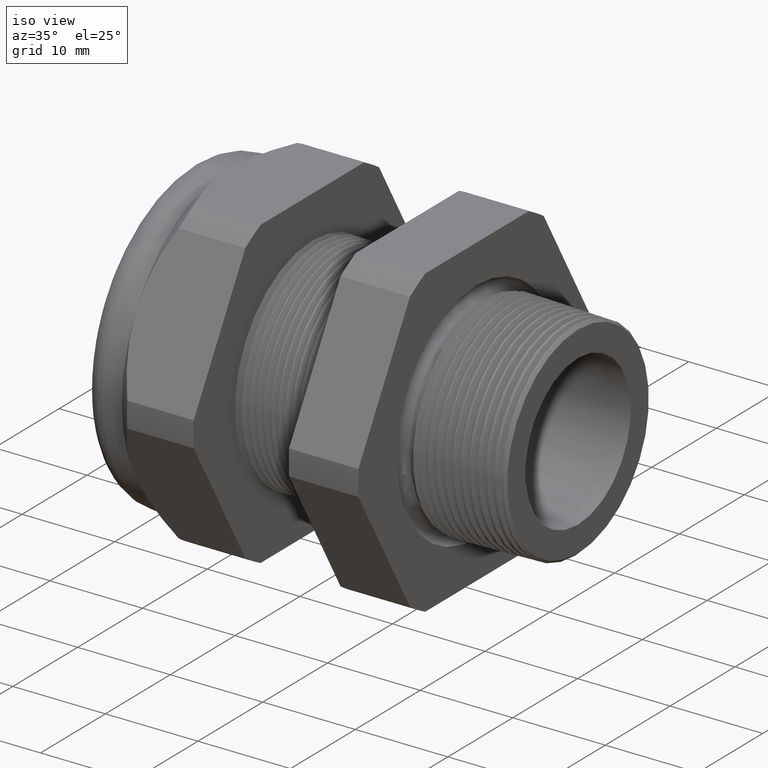
[diagram: clean part render]
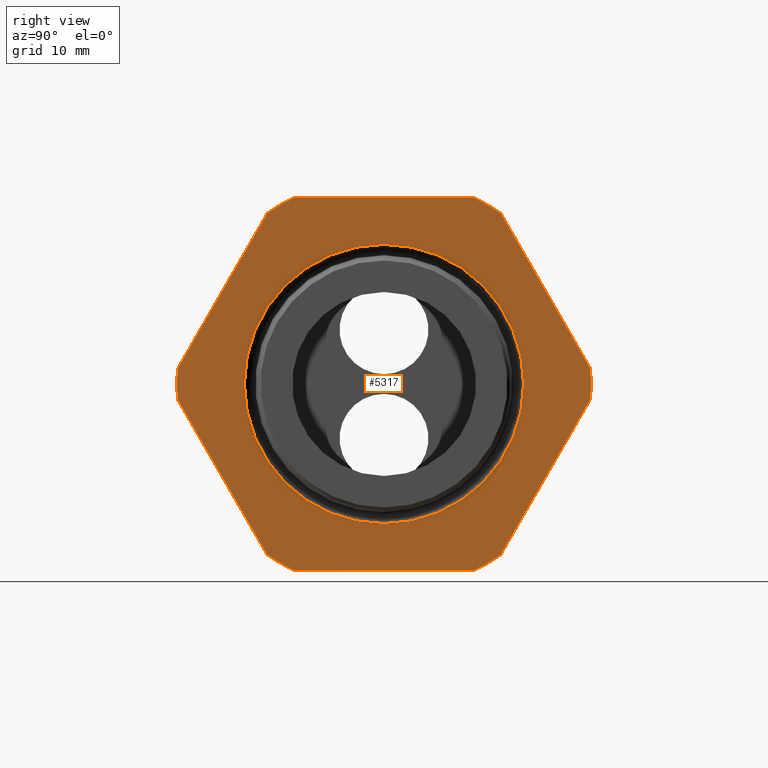
[diagram: tour spotlight — one face highlighted and labeled with its STEP entity id]
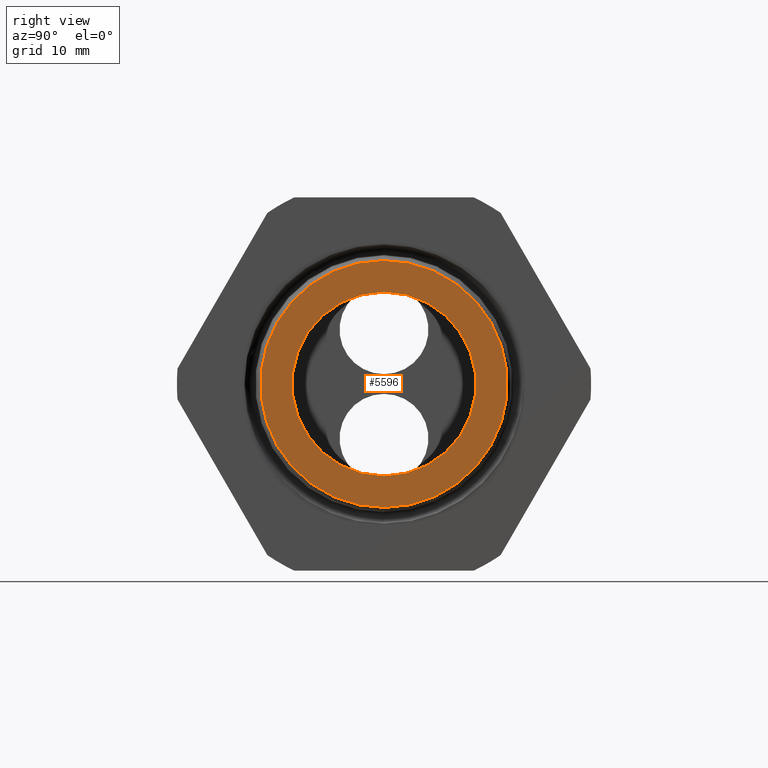
[diagram: tour spotlight — one face highlighted and labeled with its STEP entity id]
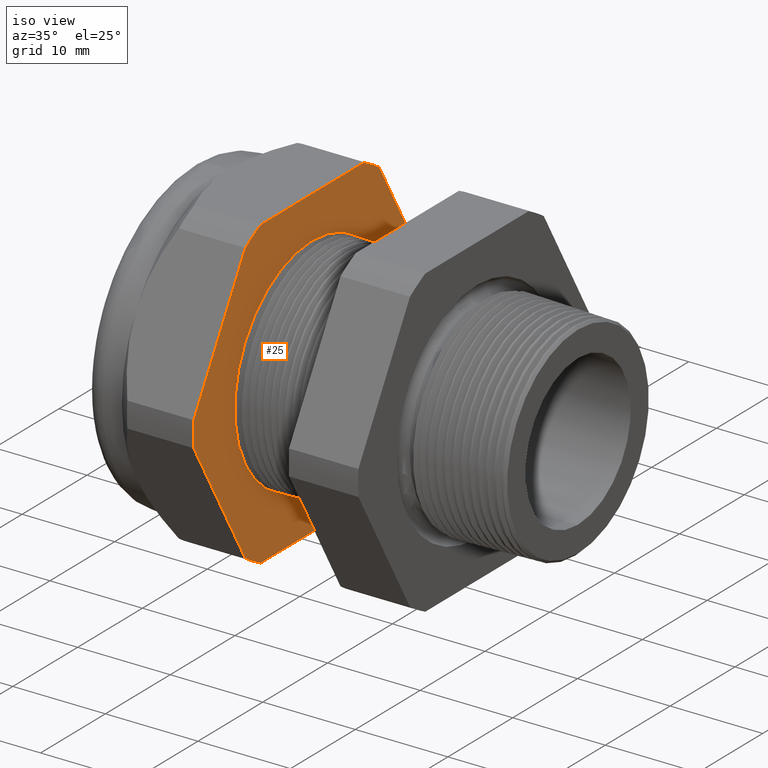
[diagram: tour spotlight — one face highlighted and labeled with its STEP entity id]
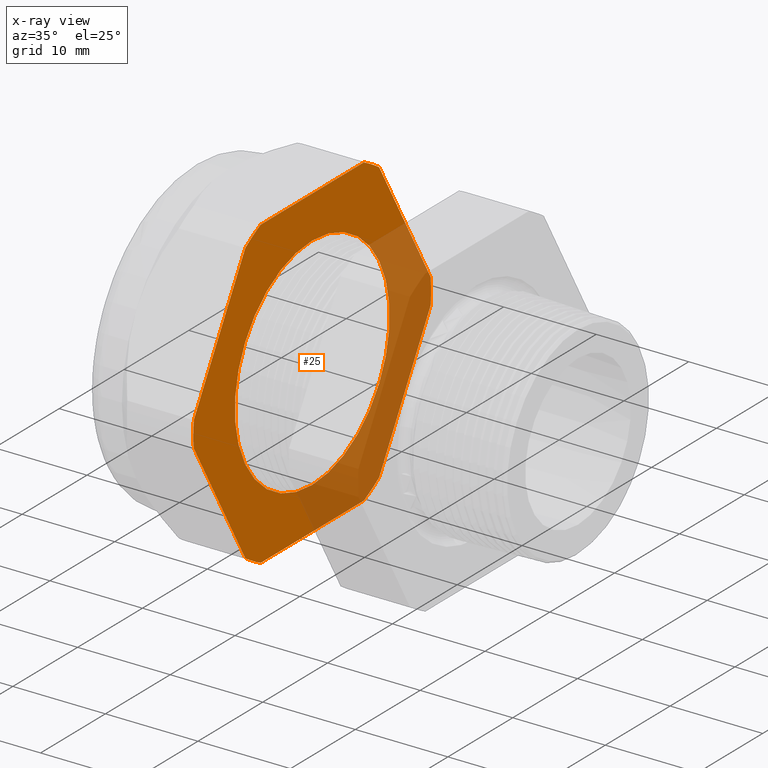
[diagram: x-ray of the same camera — body ghosted, this tour face saturated]
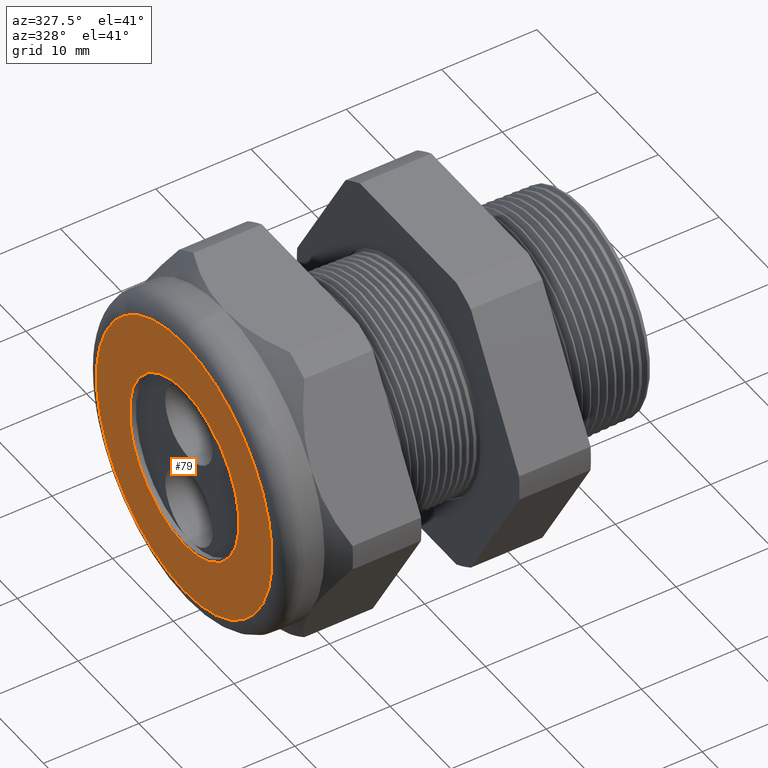
[diagram: tour spotlight — one face highlighted and labeled with its STEP entity id]
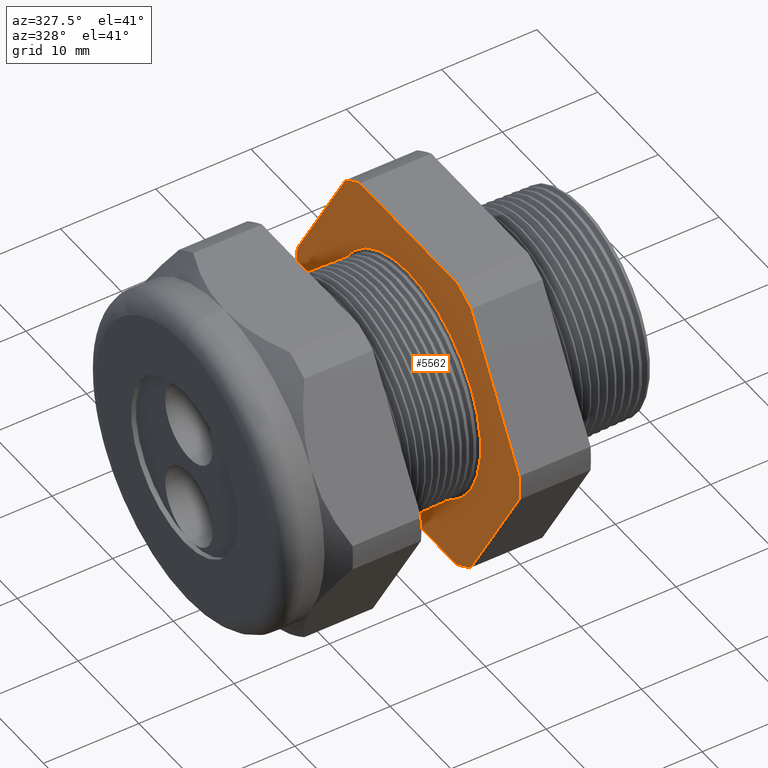
[diagram: tour spotlight — one face highlighted and labeled with its STEP entity id]
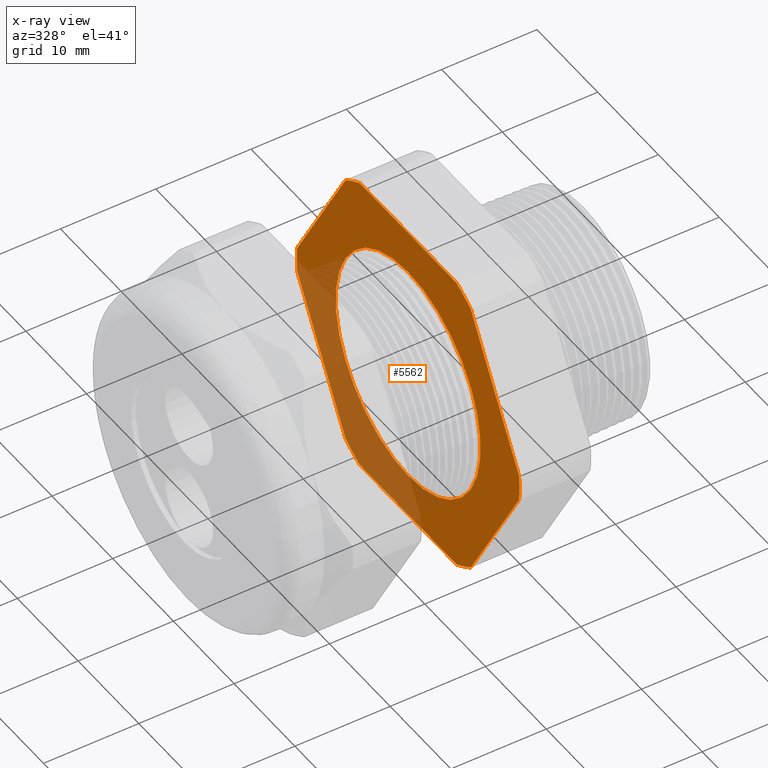
[diagram: x-ray of the same camera — body ghosted, this tour face saturated]
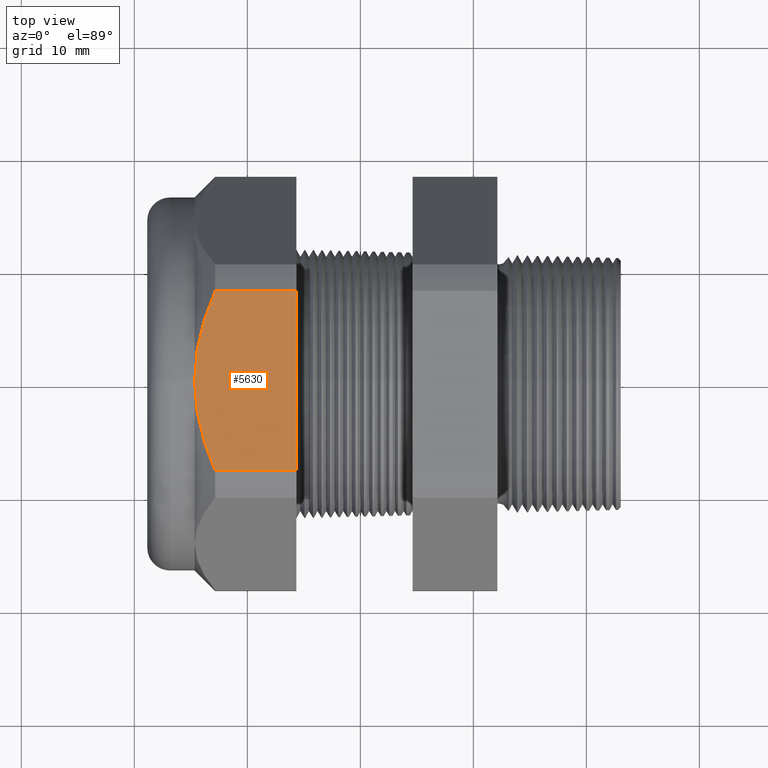
[diagram: tour spotlight — one face highlighted and labeled with its STEP entity id]
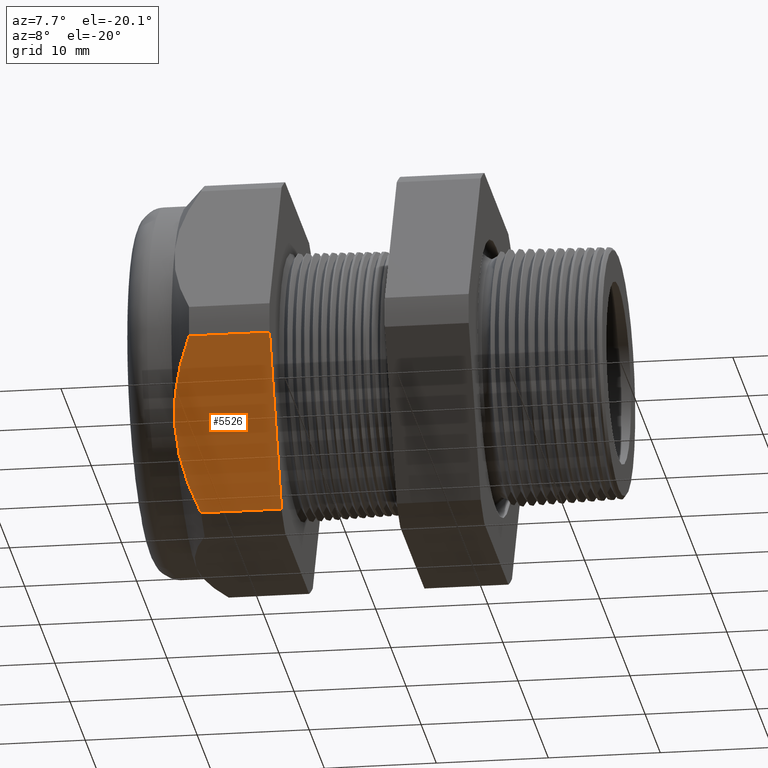
[diagram: tour spotlight — one face highlighted and labeled with its STEP entity id]
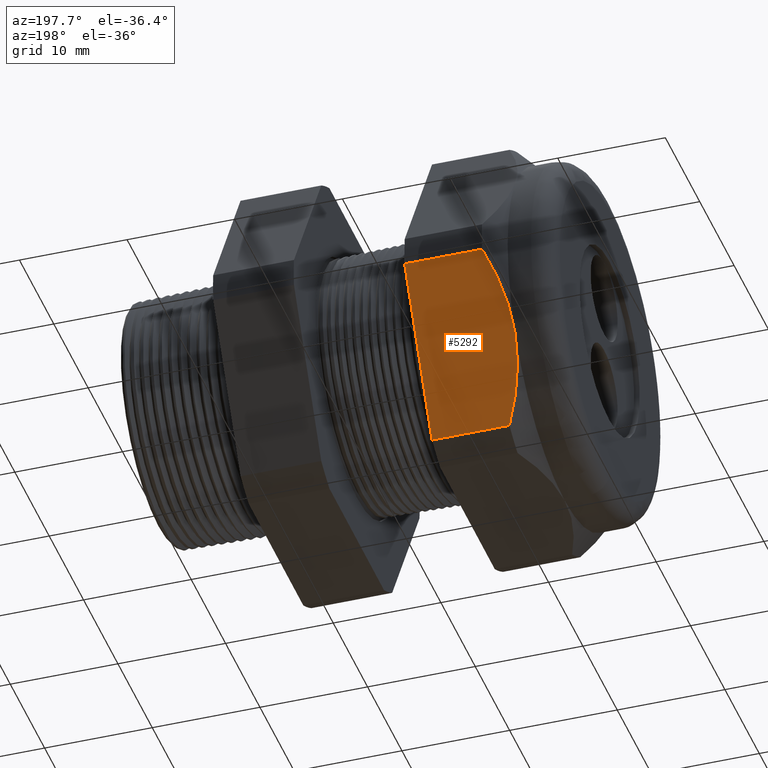
[diagram: tour spotlight — one face highlighted and labeled with its STEP entity id]
A machine part: a face-by-face anatomy tour. The part has 210 B-rep faces; the first image is the clean iso view, then the 8 largest visible faces are spotlighted one at a time (largest first), each with its STEP entity span.

Face 1 — right view, entity #5317. In plain terms, the highlighted planar face has unit normal (1, 0, 0).
Definition (entity closure, byte-faithful):
#1348 = VERTEX_POINT ( 'NONE', #3647 ) ;
#1350 = EDGE_CURVE ( 'NONE', #1348, #1351, #3646, .T. ) ;
#1351 = VERTEX_POINT ( 'NONE', #3705 ) ;
#3265 = VECTOR ( 'NONE', #3519, 39.37007874015748100 ) ;
#3519 = DIRECTION ( 'NONE',  ( 0.0000000000000000000, -1.000000000000000000, 0.0000000000000000000 ) ) ;
#3645 = AXIS2_PLACEMENT_3D ( 'NONE', #3708, #3707, #3706 ) ;
#3646 = CIRCLE ( 'NONE', #3645, 0.4863026235185991000 ) ;
#3647 = CARTESIAN_POINT ( 'NONE',  ( -0.3100000000000000000, 5.955489513090126900E-017, 0.4863026235185991000 ) ) ;
#3705 = CARTESIAN_POINT ( 'NONE',  ( -0.3100000000000000000, 0.0000000000000000000, -0.4863026235185991000 ) ) ;
#3706 = DIRECTION ( 'NONE',  ( 0.0000000000000000000, 0.0000000000000000000, -1.000000000000000000 ) ) ;
#3707 = DIRECTION ( 'NONE',  ( 1.000000000000000000, 0.0000000000000000000, 0.0000000000000000000 ) ) ;
#3708 = CARTESIAN_POINT ( 'NONE',  ( -0.3100000000000000000, 0.0000000000000000000, 0.0000000000000000000 ) ) ;
#4224 = CARTESIAN_POINT ( 'NONE',  ( -0.3100000000000000000, -0.3131489262315937400, 0.6500000000000000200 ) ) ;
#4247 = FACE_BOUND ( 'NONE', #5313, .T. ) ;
#4253 = DIRECTION ( 'NONE',  ( 0.0000000000000000000, -0.4999999999999995600, -0.8660254037844388200 ) ) ;
#4254 = VECTOR ( 'NONE', #4253, 39.37007874015748900 ) ;
#4255 = CARTESIAN_POINT ( 'NONE',  ( -0.3100000000000000000, -0.2379165124598858200, 0.8879165124598844500 ) ) ;
#4256 = LINE ( 'NONE', #4255, #4254 ) ;
#4257 = DIRECTION ( 'NONE',  ( 0.0000000000000000000, 0.0000000000000000000, -1.000000000000000000 ) ) ;
#4258 = DIRECTION ( 'NONE',  ( 1.000000000000000000, 0.0000000000000000000, 0.0000000000000000000 ) ) ;
#4259 = CARTESIAN_POINT ( 'NONE',  ( -0.3100000000000000000, 0.0000000000000000000, 0.0000000000000000000 ) ) ;
#4260 = AXIS2_PLACEMENT_3D ( 'NONE', #4259, #4258, #4257 ) ;
#4261 = CIRCLE ( 'NONE', #4260, 0.4863026235185991000 ) ;
#4266 = CARTESIAN_POINT ( 'NONE',  ( -0.3100000000000000000, 0.4063420493440886800, -0.5961949252843790100 ) ) ;
#4267 = DIRECTION ( 'NONE',  ( 0.0000000000000000000, 0.4999999999999996100, 0.8660254037844388200 ) ) ;
#4268 = VECTOR ( 'NONE', #4267, 39.37007874015748900 ) ;
#4269 = CARTESIAN_POINT ( 'NONE',  ( -0.3100000000000000000, 0.8879165124598849000, 0.2379165124598850200 ) ) ;
#4270 = LINE ( 'NONE', #4269, #4268 ) ;
#4271 = DIRECTION ( 'NONE',  ( 0.0000000000000000000, 0.0000000000000000000, -1.000000000000000000 ) ) ;
#4272 = DIRECTION ( 'NONE',  ( 1.000000000000000000, 0.0000000000000000000, 0.0000000000000000000 ) ) ;
#4273 = CARTESIAN_POINT ( 'NONE',  ( -0.3100000000000000000, 0.0000000000000000000, 0.0000000000000000000 ) ) ;
#4274 = AXIS2_PLACEMENT_3D ( 'NONE', #4273, #4272, #4271 ) ;
#4275 = CIRCLE ( 'NONE', #4274, 0.7214999999999999200 ) ;
#4276 = CARTESIAN_POINT ( 'NONE',  ( -0.3100000000000000000, 0.7194909755756817600, -0.05380507471562094600 ) ) ;
#4278 = CARTESIAN_POINT ( 'NONE',  ( -0.3100000000000000000, 1.300000000000000000, 0.6499999999999999100 ) ) ;
#4279 = LINE ( 'NONE', #4278, #3265 ) ;
#4281 = DIRECTION ( 'NONE',  ( 0.0000000000000000000, 1.000000000000000000, 0.0000000000000000000 ) ) ;
#4282 = VECTOR ( 'NONE', #4281, 39.37007874015748100 ) ;
#4283 = CARTESIAN_POINT ( 'NONE',  ( -0.3100000000000000000, 1.300000000000000000, -0.6500000000000001300 ) ) ;
#4284 = LINE ( 'NONE', #4283, #4282 ) ;
#4285 = CARTESIAN_POINT ( 'NONE',  ( -0.3100000000000000000, 0.3131489262315937900, 0.6499999999999999100 ) ) ;
#4286 = CARTESIAN_POINT ( 'NONE',  ( -0.3100000000000000000, 0.4063420493440890700, 0.5961949252843787800 ) ) ;
#4287 = CARTESIAN_POINT ( 'NONE',  ( -0.3100000000000000000, -0.4063420493440881300, -0.5961949252843793400 ) ) ;
#4299 = DIRECTION ( 'NONE',  ( 0.0000000000000000000, 0.0000000000000000000, -1.000000000000000000 ) ) ;
#4300 = DIRECTION ( 'NONE',  ( 1.000000000000000000, 0.0000000000000000000, 0.0000000000000000000 ) ) ;
#4301 = CARTESIAN_POINT ( 'NONE',  ( -0.3100000000000000000, 0.0000000000000000000, 0.0000000000000000000 ) ) ;
#4302 = AXIS2_PLACEMENT_3D ( 'NONE', #4301, #4300, #4299 ) ;
#4303 = CIRCLE ( 'NONE', #4302, 0.7215000000000000300 ) ;
#4304 = CARTESIAN_POINT ( 'NONE',  ( -0.3100000000000000000, -0.4063420493440885700, 0.5961949252843791200 ) ) ;
#4305 = DIRECTION ( 'NONE',  ( 0.0000000000000000000, 0.0000000000000000000, -1.000000000000000000 ) ) ;
#4306 = DIRECTION ( 'NONE',  ( 1.000000000000000000, 0.0000000000000000000, 0.0000000000000000000 ) ) ;
#4307 = CARTESIAN_POINT ( 'NONE',  ( -0.3100000000000000000, 1.300000000000000000, 0.0000000000000000000 ) ) ;
#4308 = AXIS2_PLACEMENT_3D ( 'NONE', #4307, #4306, #4305 ) ;
#4309 = PLANE ( 'NONE',  #4308 ) ;
#4310 = FACE_OUTER_BOUND ( 'NONE', #5308, .T. ) ;
#4312 = CARTESIAN_POINT ( 'NONE',  ( -0.3100000000000000000, -0.7194909755756819800, -0.05380507471562082100 ) ) ;
#4313 = CARTESIAN_POINT ( 'NONE',  ( -0.3100000000000000000, -0.7194909755756819800, 0.05380507471562025900 ) ) ;
#4314 = DIRECTION ( 'NONE',  ( 0.0000000000000000000, 0.0000000000000000000, -1.000000000000000000 ) ) ;
#4315 = DIRECTION ( 'NONE',  ( 1.000000000000000000, 0.0000000000000000000, 0.0000000000000000000 ) ) ;
#4316 = CARTESIAN_POINT ( 'NONE',  ( -0.3100000000000000000, 0.0000000000000000000, 0.0000000000000000000 ) ) ;
#4317 = AXIS2_PLACEMENT_3D ( 'NONE', #4316, #4315, #4314 ) ;
#4318 = CIRCLE ( 'NONE', #4317, 0.7215000000000000300 ) ;
#4319 = DIRECTION ( 'NONE',  ( 0.0000000000000000000, 0.0000000000000000000, -1.000000000000000000 ) ) ;
#4320 = DIRECTION ( 'NONE',  ( 1.000000000000000000, 0.0000000000000000000, 0.0000000000000000000 ) ) ;
#4321 = CARTESIAN_POINT ( 'NONE',  ( -0.3100000000000000000, 0.0000000000000000000, 0.0000000000000000000 ) ) ;
#4322 = AXIS2_PLACEMENT_3D ( 'NONE', #4321, #4320, #4319 ) ;
#4323 = CIRCLE ( 'NONE', #4322, 0.7215000000000000300 ) ;
#4324 = DIRECTION ( 'NONE',  ( 0.0000000000000000000, -0.4999999999999998900, 0.8660254037844386000 ) ) ;
#4325 = VECTOR ( 'NONE', #4324, 39.37007874015748100 ) ;
#4326 = CARTESIAN_POINT ( 'NONE',  ( -0.3100000000000000000, 0.8879165124598854500, -0.2379165124598849300 ) ) ;
#4328 = LINE ( 'NONE', #4326, #4325 ) ;
#4329 = CARTESIAN_POINT ( 'NONE',  ( -0.3100000000000000000, -0.3131489262315934100, -0.6500000000000001300 ) ) ;
#4330 = DIRECTION ( 'NONE',  ( 0.0000000000000000000, 0.0000000000000000000, -1.000000000000000000 ) ) ;
#4331 = DIRECTION ( 'NONE',  ( 1.000000000000000000, 0.0000000000000000000, 0.0000000000000000000 ) ) ;
#4332 = CARTESIAN_POINT ( 'NONE',  ( -0.3100000000000000000, 0.0000000000000000000, 0.0000000000000000000 ) ) ;
#4333 = AXIS2_PLACEMENT_3D ( 'NONE', #4332, #4331, #4330 ) ;
#4334 = CIRCLE ( 'NONE', #4333, 0.7215000000000000300 ) ;
#4335 = CARTESIAN_POINT ( 'NONE',  ( -0.3100000000000000000, 0.3131489262315934100, -0.6500000000000001300 ) ) ;
#4336 = CARTESIAN_POINT ( 'NONE',  ( -0.3100000000000000000, 0.7194909755756817600, 0.05380507471562173000 ) ) ;
#4337 = DIRECTION ( 'NONE',  ( 0.0000000000000000000, 0.0000000000000000000, -1.000000000000000000 ) ) ;
#4338 = DIRECTION ( 'NONE',  ( 1.000000000000000000, 0.0000000000000000000, 0.0000000000000000000 ) ) ;
#4339 = CARTESIAN_POINT ( 'NONE',  ( -0.3100000000000000000, 0.0000000000000000000, 0.0000000000000000000 ) ) ;
#4340 = AXIS2_PLACEMENT_3D ( 'NONE', #4339, #4338, #4337 ) ;
#4341 = CIRCLE ( 'NONE', #4340, 0.7215000000000000300 ) ;
#4366 = DIRECTION ( 'NONE',  ( 0.0000000000000000000, 0.5000000000000001100, -0.8660254037844386000 ) ) ;
#4367 = VECTOR ( 'NONE', #4366, 39.37007874015748100 ) ;
#4368 = CARTESIAN_POINT ( 'NONE',  ( -0.3100000000000000000, -0.2379165124598852700, -0.8879165124598854500 ) ) ;
#4369 = LINE ( 'NONE', #4368, #4367 ) ;
#5288 = ORIENTED_EDGE ( 'NONE', *, *, #5320, .T. ) ;
#5296 = VERTEX_POINT ( 'NONE', #4224 ) ;
#5302 = VERTEX_POINT ( 'NONE', #4276 ) ;
#5303 = ORIENTED_EDGE ( 'NONE', *, *, #5305, .T. ) ;
#5304 = ORIENTED_EDGE ( 'NONE', *, *, #1350, .F. ) ;
#5305 = EDGE_CURVE ( 'NONE', #5302, #5333, #4275, .T. ) ;
#5306 = EDGE_CURVE ( 'NONE', #5307, #5302, #4270, .T. ) ;
#5307 = VERTEX_POINT ( 'NONE', #4266 ) ;
#5308 = EDGE_LOOP ( 'NONE', ( #5310, #5303, #5340, #5341, #5343, #5288, #5322, #5344, #5346, #5326, #5338, #5339 ) ) ;
#5310 = ORIENTED_EDGE ( 'NONE', *, *, #5306, .T. ) ;
#5311 = ORIENTED_EDGE ( 'NONE', *, *, #5312, .F. ) ;
#5312 = EDGE_CURVE ( 'NONE', #1351, #1348, #4261, .T. ) ;
#5313 = EDGE_LOOP ( 'NONE', ( #5311, #5304 ) ) ;
#5314 = EDGE_CURVE ( 'NONE', #5319, #5347, #4256, .T. ) ;
#5317 = ADVANCED_FACE ( 'NONE', ( #4247, #4310 ), #4309, .T. ) ;
#5319 = VERTEX_POINT ( 'NONE', #4304 ) ;
#5320 = EDGE_CURVE ( 'NONE', #5296, #5319, #4303, .T. ) ;
#5322 = ORIENTED_EDGE ( 'NONE', *, *, #5314, .T. ) ;
#5326 = ORIENTED_EDGE ( 'NONE', *, *, #5332, .T. ) ;
#5327 = VERTEX_POINT ( 'NONE', #4287 ) ;
#5328 = VERTEX_POINT ( 'NONE', #4286 ) ;
#5329 = VERTEX_POINT ( 'NONE', #4285 ) ;
#5330 = EDGE_CURVE ( 'NONE', #5336, #5334, #4284, .T. ) ;
#5331 = EDGE_CURVE ( 'NONE', #5329, #5296, #4279, .T. ) ;
#5332 = EDGE_CURVE ( 'NONE', #5327, #5336, #4341, .T. ) ;
#5333 = VERTEX_POINT ( 'NONE', #4336 ) ;
#5334 = VERTEX_POINT ( 'NONE', #4335 ) ;
#5335 = EDGE_CURVE ( 'NONE', #5334, #5307, #4334, .T. ) ;
#5336 = VERTEX_POINT ( 'NONE', #4329 ) ;
#5337 = EDGE_CURVE ( 'NONE', #5333, #5328, #4328, .T. ) ;
#5338 = ORIENTED_EDGE ( 'NONE', *, *, #5330, .T. ) ;
#5339 = ORIENTED_EDGE ( 'NONE', *, *, #5335, .T. ) ;
#5340 = ORIENTED_EDGE ( 'NONE', *, *, #5337, .T. ) ;
#5341 = ORIENTED_EDGE ( 'NONE', *, *, #5342, .T. ) ;
#5342 = EDGE_CURVE ( 'NONE', #5328, #5329, #4323, .T. ) ;
#5343 = ORIENTED_EDGE ( 'NONE', *, *, #5331, .T. ) ;
#5344 = ORIENTED_EDGE ( 'NONE', *, *, #5345, .T. ) ;
#5345 = EDGE_CURVE ( 'NONE', #5347, #5348, #4318, .T. ) ;
#5346 = ORIENTED_EDGE ( 'NONE', *, *, #5350, .T. ) ;
#5347 = VERTEX_POINT ( 'NONE', #4313 ) ;
#5348 = VERTEX_POINT ( 'NONE', #4312 ) ;
#5350 = EDGE_CURVE ( 'NONE', #5348, #5327, #4369, .T. ) ;

Face 2 — right view, entity #5596. In plain terms, the highlighted planar face has unit normal (1, 0, 0).
Definition (entity closure, byte-faithful):
#915 = EDGE_CURVE ( 'NONE', #916, #917, #2827, .T. ) ;
#916 = VERTEX_POINT ( 'NONE', #2822 ) ;
#917 = VERTEX_POINT ( 'NONE', #2821 ) ;
#974 = EDGE_CURVE ( 'NONE', #975, #976, #2962, .T. ) ;
#975 = VERTEX_POINT ( 'NONE', #2958 ) ;
#976 = VERTEX_POINT ( 'NONE', #2957 ) ;
#2821 = CARTESIAN_POINT ( 'NONE',  ( 0.1200000000000000200, 0.0000000000000000000, 0.4301292403640452600 ) ) ;
#2822 = CARTESIAN_POINT ( 'NONE',  ( 0.1200000000000000200, 5.332067285935767100E-017, -0.4301292403640452600 ) ) ;
#2823 = DIRECTION ( 'NONE',  ( 0.0000000000000000000, 0.0000000000000000000, -1.000000000000000000 ) ) ;
#2824 = DIRECTION ( 'NONE',  ( 1.000000000000000000, 0.0000000000000000000, 0.0000000000000000000 ) ) ;
#2825 = CARTESIAN_POINT ( 'NONE',  ( 0.1200000000000000200, 0.0000000000000000000, 0.0000000000000000000 ) ) ;
#2826 = AXIS2_PLACEMENT_3D ( 'NONE', #2825, #2824, #2823 ) ;
#2827 = CIRCLE ( 'NONE', #2826, 0.4301292403640452600 ) ;
#2957 = CARTESIAN_POINT ( 'NONE',  ( 0.1200000000000000200, 4.135642411978520400E-017, -0.3204016610924743100 ) ) ;
#2958 = CARTESIAN_POINT ( 'NONE',  ( 0.1200000000000000200, 0.0000000000000000000, 0.3204016610924743100 ) ) ;
#2959 = DIRECTION ( 'NONE',  ( 0.0000000000000000000, 0.0000000000000000000, -1.000000000000000000 ) ) ;
#2960 = DIRECTION ( 'NONE',  ( 1.000000000000000000, 0.0000000000000000000, 0.0000000000000000000 ) ) ;
#2961 = AXIS2_PLACEMENT_3D ( 'NONE', #2968, #2960, #2959 ) ;
#2962 = CIRCLE ( 'NONE', #2961, 0.3204016610924743100 ) ;
#2968 = CARTESIAN_POINT ( 'NONE',  ( 0.1200000000000000200, 0.0000000000000000000, 0.0000000000000000000 ) ) ;
#4095 = DIRECTION ( 'NONE',  ( 0.0000000000000000000, 0.0000000000000000000, -1.000000000000000000 ) ) ;
#4096 = DIRECTION ( 'NONE',  ( 1.000000000000000000, 0.0000000000000000000, 0.0000000000000000000 ) ) ;
#4097 = AXIS2_PLACEMENT_3D ( 'NONE', #4103, #4096, #4095 ) ;
#4098 = CIRCLE ( 'NONE', #4097, 0.4301292403640452600 ) ;
#4103 = CARTESIAN_POINT ( 'NONE',  ( 0.1200000000000000200, 0.0000000000000000000, 0.0000000000000000000 ) ) ;
#4815 = DIRECTION ( 'NONE',  ( 0.0000000000000000000, 0.0000000000000000000, -1.000000000000000000 ) ) ;
#4816 = DIRECTION ( 'NONE',  ( 1.000000000000000000, 0.0000000000000000000, 0.0000000000000000000 ) ) ;
#4817 = CARTESIAN_POINT ( 'NONE',  ( 0.1200000000000000200, 0.0000000000000000000, 0.0000000000000000000 ) ) ;
#4818 = AXIS2_PLACEMENT_3D ( 'NONE', #4817, #4816, #4815 ) ;
#4819 = CIRCLE ( 'NONE', #4818, 0.3204016610924743100 ) ;
#4820 = DIRECTION ( 'NONE',  ( 0.0000000000000000000, 0.0000000000000000000, -1.000000000000000000 ) ) ;
#4821 = DIRECTION ( 'NONE',  ( 1.000000000000000000, 0.0000000000000000000, 0.0000000000000000000 ) ) ;
#4822 = CARTESIAN_POINT ( 'NONE',  ( 0.1200000000000000200, 0.3204016610924743100, 0.0000000000000000000 ) ) ;
#4823 = AXIS2_PLACEMENT_3D ( 'NONE', #4822, #4821, #4820 ) ;
#4824 = PLANE ( 'NONE',  #4823 ) ;
#4825 = FACE_BOUND ( 'NONE', #5219, .T. ) ;
#4826 = FACE_OUTER_BOUND ( 'NONE', #5560, .T. ) ;
#5173 = ORIENTED_EDGE ( 'NONE', *, *, #974, .F. ) ;
#5219 = EDGE_LOOP ( 'NONE', ( #5173, #5558 ) ) ;
#5225 = ORIENTED_EDGE ( 'NONE', *, *, #915, .T. ) ;
#5235 = EDGE_CURVE ( 'NONE', #917, #916, #4098, .T. ) ;
#5558 = ORIENTED_EDGE ( 'NONE', *, *, #5597, .F. ) ;
#5560 = EDGE_LOOP ( 'NONE', ( #5586, #5225 ) ) ;
#5586 = ORIENTED_EDGE ( 'NONE', *, *, #5235, .T. ) ;
#5596 = ADVANCED_FACE ( 'NONE', ( #4826, #4825 ), #4824, .T. ) ;
#5597 = EDGE_CURVE ( 'NONE', #976, #975, #4819, .T. ) ;

Face 3 — iso view, entity #25. An x-ray twin of the same camera follows (body ghosted, this face saturated) — the face is partly hidden behind the body. In plain terms, the highlighted planar face has unit normal (1, 0, 0).
Definition (entity closure, byte-faithful):
#8 = EDGE_CURVE ( 'NONE', #939, #936, #1370, .T. ) ;
#9 = EDGE_LOOP ( 'NONE', ( #10, #5653 ) ) ;
#10 = ORIENTED_EDGE ( 'NONE', *, *, #8, .F. ) ;
#22 = ORIENTED_EDGE ( 'NONE', *, *, #5352, .T. ) ;
#23 = ORIENTED_EDGE ( 'NONE', *, *, #5532, .T. ) ;
#25 = ADVANCED_FACE ( 'NONE', ( #1414, #1409 ), #1408, .T. ) ;
#32 = ORIENTED_EDGE ( 'NONE', *, *, #5554, .T. ) ;
#34 = ORIENTED_EDGE ( 'NONE', *, *, #87, .T. ) ;
#35 = ORIENTED_EDGE ( 'NONE', *, *, #5626, .T. ) ;
#42 = ORIENTED_EDGE ( 'NONE', *, *, #5628, .T. ) ;
#46 = EDGE_LOOP ( 'NONE', ( #22, #48, #49, #50, #51, #42, #34, #35, #32, #23, #5426, #5428 ) ) ;
#48 = ORIENTED_EDGE ( 'NONE', *, *, #5316, .T. ) ;
#49 = ORIENTED_EDGE ( 'NONE', *, *, #5299, .T. ) ;
#50 = ORIENTED_EDGE ( 'NONE', *, *, #113, .T. ) ;
#51 = ORIENTED_EDGE ( 'NONE', *, *, #91, .T. ) ;
#87 = EDGE_CURVE ( 'NONE', #5619, #5549, #1481, .T. ) ;
#90 = VERTEX_POINT ( 'NONE', #1530 ) ;
#91 = EDGE_CURVE ( 'NONE', #90, #5635, #1529, .T. ) ;
#102 = VERTEX_POINT ( 'NONE', #1514 ) ;
#109 = VERTEX_POINT ( 'NONE', #1546 ) ;
#113 = EDGE_CURVE ( 'NONE', #102, #90, #1602, .T. ) ;
#936 = VERTEX_POINT ( 'NONE', #2850 ) ;
#938 = EDGE_CURVE ( 'NONE', #936, #939, #2911, .T. ) ;
#939 = VERTEX_POINT ( 'NONE', #2906 ) ;
#1366 = DIRECTION ( 'NONE',  ( 0.0000000000000000000, 0.0000000000000000000, -1.000000000000000000 ) ) ;
#1367 = DIRECTION ( 'NONE',  ( 1.000000000000000000, 0.0000000000000000000, 0.0000000000000000000 ) ) ;
#1368 = CARTESIAN_POINT ( 'NONE',  ( -1.010314960629921100, 0.0000000000000000000, 0.0000000000000000000 ) ) ;
#1369 = AXIS2_PLACEMENT_3D ( 'NONE', #1368, #1367, #1366 ) ;
#1370 = CIRCLE ( 'NONE', #1369, 0.4699999999999999700 ) ;
#1404 = DIRECTION ( 'NONE',  ( 0.0000000000000000000, 0.0000000000000000000, -1.000000000000000000 ) ) ;
#1405 = DIRECTION ( 'NONE',  ( 1.000000000000000000, 0.0000000000000000000, 0.0000000000000000000 ) ) ;
#1406 = CARTESIAN_POINT ( 'NONE',  ( -1.010314960629921100, 0.4699999999999999700, 0.0000000000000000000 ) ) ;
#1407 = AXIS2_PLACEMENT_3D ( 'NONE', #1406, #1405, #1404 ) ;
#1408 = PLANE ( 'NONE',  #1407 ) ;
#1409 = FACE_OUTER_BOUND ( 'NONE', #46, .T. ) ;
#1414 = FACE_BOUND ( 'NONE', #9, .T. ) ;
#1481 = LINE ( 'NONE', #1539, #1538 ) ;
#1514 = CARTESIAN_POINT ( 'NONE',  ( -1.010314960629921100, 0.4063420493440890700, 0.5961949252843787800 ) ) ;
#1526 = DIRECTION ( 'NONE',  ( 0.0000000000000000000, -1.000000000000000000, 0.0000000000000000000 ) ) ;
#1527 = VECTOR ( 'NONE', #1526, 39.37007874015748100 ) ;
#1528 = CARTESIAN_POINT ( 'NONE',  ( -1.010314960629921100, 0.4699999999999999700, 0.6499999999999999100 ) ) ;
#1529 = LINE ( 'NONE', #1528, #1527 ) ;
#1530 = CARTESIAN_POINT ( 'NONE',  ( -1.010314960629921100, 0.3131489262315937900, 0.6499999999999999100 ) ) ;
#1537 = DIRECTION ( 'NONE',  ( 0.0000000000000000000, -0.4999999999999995600, -0.8660254037844388200 ) ) ;
#1538 = VECTOR ( 'NONE', #1537, 39.37007874015748900 ) ;
#1539 = CARTESIAN_POINT ( 'NONE',  ( -1.010314960629921100, -0.4454165124598855100, 0.5285159698893426800 ) ) ;
#1544 = CARTESIAN_POINT ( 'NONE',  ( -1.010314960629921100, 0.0000000000000000000, 0.0000000000000000000 ) ) ;
#1546 = CARTESIAN_POINT ( 'NONE',  ( -1.010314960629921100, 0.7194909755756817600, 0.05380507471562173000 ) ) ;
#1599 = DIRECTION ( 'NONE',  ( 0.0000000000000000000, 0.0000000000000000000, -1.000000000000000000 ) ) ;
#1600 = DIRECTION ( 'NONE',  ( 1.000000000000000000, 0.0000000000000000000, 0.0000000000000000000 ) ) ;
#1601 = AXIS2_PLACEMENT_3D ( 'NONE', #1544, #1600, #1599 ) ;
#1602 = CIRCLE ( 'NONE', #1601, 0.7215000000000000300 ) ;
#2850 = CARTESIAN_POINT ( 'NONE',  ( -1.010314960629921100, 5.755839955992559700E-017, -0.4699999999999999700 ) ) ;
#2906 = CARTESIAN_POINT ( 'NONE',  ( -1.010314960629921100, 0.0000000000000000000, 0.4699999999999999700 ) ) ;
#2907 = DIRECTION ( 'NONE',  ( 0.0000000000000000000, 0.0000000000000000000, -1.000000000000000000 ) ) ;
#2908 = DIRECTION ( 'NONE',  ( 1.000000000000000000, 0.0000000000000000000, 0.0000000000000000000 ) ) ;
#2909 = CARTESIAN_POINT ( 'NONE',  ( -1.010314960629921100, 0.0000000000000000000, 0.0000000000000000000 ) ) ;
#2910 = AXIS2_PLACEMENT_3D ( 'NONE', #2909, #2908, #2907 ) ;
#2911 = CIRCLE ( 'NONE', #2910, 0.4699999999999999700 ) ;
#4219 = DIRECTION ( 'NONE',  ( 0.0000000000000000000, -0.4999999999999998900, 0.8660254037844386000 ) ) ;
#4220 = VECTOR ( 'NONE', #4219, 39.37007874015748100 ) ;
#4221 = CARTESIAN_POINT ( 'NONE',  ( -1.010314960629921100, 0.6804165124598855500, 0.1214840301106571000 ) ) ;
#4222 = LINE ( 'NONE', #4221, #4220 ) ;
#4248 = DIRECTION ( 'NONE',  ( 0.0000000000000000000, 0.0000000000000000000, -1.000000000000000000 ) ) ;
#4249 = DIRECTION ( 'NONE',  ( 1.000000000000000000, 0.0000000000000000000, 0.0000000000000000000 ) ) ;
#4250 = CARTESIAN_POINT ( 'NONE',  ( -1.010314960629921100, 0.0000000000000000000, 0.0000000000000000000 ) ) ;
#4251 = AXIS2_PLACEMENT_3D ( 'NONE', #4250, #4249, #4248 ) ;
#4252 = CIRCLE ( 'NONE', #4251, 0.7214999999999999200 ) ;
#4344 = CARTESIAN_POINT ( 'NONE',  ( -1.010314960629921100, 0.7194909755756818700, -0.05380507471562089000 ) ) ;
#4356 = DIRECTION ( 'NONE',  ( 0.0000000000000000000, 0.4999999999999996100, 0.8660254037844388200 ) ) ;
#4357 = VECTOR ( 'NONE', #4356, 39.37007874015748900 ) ;
#4359 = CARTESIAN_POINT ( 'NONE',  ( -1.010314960629921100, 0.6804165124598852100, -0.1214840301106568700 ) ) ;
#4365 = LINE ( 'NONE', #4359, #4357 ) ;
#4377 = DIRECTION ( 'NONE',  ( 0.0000000000000000000, 0.0000000000000000000, -1.000000000000000000 ) ) ;
#4378 = DIRECTION ( 'NONE',  ( 1.000000000000000000, 0.0000000000000000000, 0.0000000000000000000 ) ) ;
#4379 = AXIS2_PLACEMENT_3D ( 'NONE', #4393, #4378, #4377 ) ;
#4380 = CIRCLE ( 'NONE', #4379, 0.7215000000000000300 ) ;
#4393 = CARTESIAN_POINT ( 'NONE',  ( -1.010314960629921100, 0.0000000000000000000, 0.0000000000000000000 ) ) ;
#4395 = CARTESIAN_POINT ( 'NONE',  ( -1.010314960629921100, 0.4063420493440886800, -0.5961949252843790100 ) ) ;
#4413 = CARTESIAN_POINT ( 'NONE',  ( -1.010314960629921100, 0.3131489262315934100, -0.6500000000000001300 ) ) ;
#4432 = CARTESIAN_POINT ( 'NONE',  ( -1.010314960629921100, -0.3131489262315934100, -0.6500000000000001300 ) ) ;
#4469 = CARTESIAN_POINT ( 'NONE',  ( -1.010314960629921100, -0.4063420493440881300, -0.5961949252843793400 ) ) ;
#4639 = DIRECTION ( 'NONE',  ( 0.0000000000000000000, 1.000000000000000000, 0.0000000000000000000 ) ) ;
#4640 = VECTOR ( 'NONE', #4639, 39.37007874015748100 ) ;
#4641 = CARTESIAN_POINT ( 'NONE',  ( -1.010314960629921100, 0.4699999999999999700, -0.6500000000000001300 ) ) ;
#4642 = LINE ( 'NONE', #4641, #4640 ) ;
#4681 = CARTESIAN_POINT ( 'NONE',  ( -1.010314960629921100, -0.7194909755756819800, -0.05380507471562082100 ) ) ;
#4729 = DIRECTION ( 'NONE',  ( 0.0000000000000000000, 0.0000000000000000000, -1.000000000000000000 ) ) ;
#4731 = DIRECTION ( 'NONE',  ( 1.000000000000000000, 0.0000000000000000000, 0.0000000000000000000 ) ) ;
#4732 = CARTESIAN_POINT ( 'NONE',  ( -1.010314960629921100, 0.0000000000000000000, 0.0000000000000000000 ) ) ;
#4733 = AXIS2_PLACEMENT_3D ( 'NONE', #4732, #4731, #4729 ) ;
#4734 = CIRCLE ( 'NONE', #4733, 0.7215000000000000300 ) ;
#4747 = DIRECTION ( 'NONE',  ( 0.0000000000000000000, 0.5000000000000001100, -0.8660254037844386000 ) ) ;
#4748 = VECTOR ( 'NONE', #4747, 39.37007874015748100 ) ;
#4749 = CARTESIAN_POINT ( 'NONE',  ( -1.010314960629921100, -0.4454165124598852300, -0.5285159698893432400 ) ) ;
#4755 = LINE ( 'NONE', #4749, #4748 ) ;
#4761 = CARTESIAN_POINT ( 'NONE',  ( -1.010314960629921100, -0.7194909755756819800, 0.05380507471562025900 ) ) ;
#4885 = CARTESIAN_POINT ( 'NONE',  ( -1.010314960629921100, -0.4063420493440885700, 0.5961949252843791200 ) ) ;
#4908 = CARTESIAN_POINT ( 'NONE',  ( -1.010314960629921100, -0.3131489262315937400, 0.6500000000000000200 ) ) ;
#4914 = DIRECTION ( 'NONE',  ( 0.0000000000000000000, 0.0000000000000000000, -1.000000000000000000 ) ) ;
#4915 = DIRECTION ( 'NONE',  ( 1.000000000000000000, 0.0000000000000000000, 0.0000000000000000000 ) ) ;
#4916 = CARTESIAN_POINT ( 'NONE',  ( -1.010314960629921100, 0.0000000000000000000, 0.0000000000000000000 ) ) ;
#4917 = AXIS2_PLACEMENT_3D ( 'NONE', #4916, #4915, #4914 ) ;
#4918 = CIRCLE ( 'NONE', #4917, 0.7215000000000000300 ) ;
#4921 = DIRECTION ( 'NONE',  ( 0.0000000000000000000, 0.0000000000000000000, -1.000000000000000000 ) ) ;
#4922 = DIRECTION ( 'NONE',  ( 1.000000000000000000, 0.0000000000000000000, 0.0000000000000000000 ) ) ;
#4923 = CARTESIAN_POINT ( 'NONE',  ( -1.010314960629921100, 0.0000000000000000000, 0.0000000000000000000 ) ) ;
#4924 = AXIS2_PLACEMENT_3D ( 'NONE', #4923, #4922, #4921 ) ;
#4925 = CIRCLE ( 'NONE', #4924, 0.7215000000000000300 ) ;
#5299 = EDGE_CURVE ( 'NONE', #109, #102, #4222, .T. ) ;
#5316 = EDGE_CURVE ( 'NONE', #5357, #109, #4252, .T. ) ;
#5352 = EDGE_CURVE ( 'NONE', #5361, #5357, #4365, .T. ) ;
#5357 = VERTEX_POINT ( 'NONE', #4344 ) ;
#5361 = VERTEX_POINT ( 'NONE', #4395 ) ;
#5366 = EDGE_CURVE ( 'NONE', #5386, #5361, #4380, .T. ) ;
#5373 = VERTEX_POINT ( 'NONE', #4432 ) ;
#5386 = VERTEX_POINT ( 'NONE', #4413 ) ;
#5403 = VERTEX_POINT ( 'NONE', #4469 ) ;
#5426 = ORIENTED_EDGE ( 'NONE', *, *, #5489, .T. ) ;
#5428 = ORIENTED_EDGE ( 'NONE', *, *, #5366, .T. ) ;
#5489 = EDGE_CURVE ( 'NONE', #5373, #5386, #4642, .T. ) ;
#5525 = VERTEX_POINT ( 'NONE', #4681 ) ;
#5532 = EDGE_CURVE ( 'NONE', #5403, #5373, #4734, .T. ) ;
#5549 = VERTEX_POINT ( 'NONE', #4761 ) ;
#5554 = EDGE_CURVE ( 'NONE', #5525, #5403, #4755, .T. ) ;
#5619 = VERTEX_POINT ( 'NONE', #4885 ) ;
#5626 = EDGE_CURVE ( 'NONE', #5549, #5525, #4925, .T. ) ;
#5628 = EDGE_CURVE ( 'NONE', #5635, #5619, #4918, .T. ) ;
#5635 = VERTEX_POINT ( 'NONE', #4908 ) ;
#5653 = ORIENTED_EDGE ( 'NONE', *, *, #938, .F. ) ;

Face 4 — auxiliary view, entity #79. In plain terms, the highlighted planar face has unit normal (-1, 0, 0).
Definition (entity closure, byte-faithful):
#73 = EDGE_LOOP ( 'NONE', ( #5172, #5168 ) ) ;
#74 = ORIENTED_EDGE ( 'NONE', *, *, #987, .T. ) ;
#75 = ORIENTED_EDGE ( 'NONE', *, *, #5196, .T. ) ;
#76 = EDGE_LOOP ( 'NONE', ( #74, #75 ) ) ;
#79 = ADVANCED_FACE ( 'NONE', ( #1504, #1503 ), #1502, .T. ) ;
#172 = VERTEX_POINT ( 'NONE', #1686 ) ;
#173 = VERTEX_POINT ( 'NONE', #1685 ) ;
#253 = EDGE_CURVE ( 'NONE', #172, #173, #1793, .T. ) ;
#985 = VERTEX_POINT ( 'NONE', #3002 ) ;
#987 = EDGE_CURVE ( 'NONE', #988, #985, #3001, .T. ) ;
#988 = VERTEX_POINT ( 'NONE', #2996 ) ;
#1498 = DIRECTION ( 'NONE',  ( 0.0000000000000000000, 0.0000000000000000000, 1.000000000000000000 ) ) ;
#1499 = DIRECTION ( 'NONE',  ( -1.000000000000000000, 0.0000000000000000000, 0.0000000000000000000 ) ) ;
#1500 = CARTESIAN_POINT ( 'NONE',  ( -1.529999999999999800, 0.6499999999999999100, 0.0000000000000000000 ) ) ;
#1501 = AXIS2_PLACEMENT_3D ( 'NONE', #1500, #1499, #1498 ) ;
#1502 = PLANE ( 'NONE',  #1501 ) ;
#1503 = FACE_BOUND ( 'NONE', #73, .T. ) ;
#1504 = FACE_OUTER_BOUND ( 'NONE', #76, .T. ) ;
#1685 = CARTESIAN_POINT ( 'NONE',  ( -1.529999999999999800, 0.0000000000000000000, -0.3549999999999999800 ) ) ;
#1686 = CARTESIAN_POINT ( 'NONE',  ( -1.529999999999999800, 4.347496136973103500E-017, 0.3549999999999999800 ) ) ;
#1793 = CIRCLE ( 'NONE', #1852, 0.3549999999999999800 ) ;
#1849 = DIRECTION ( 'NONE',  ( 0.0000000000000000000, 0.0000000000000000000, -1.000000000000000000 ) ) ;
#1850 = DIRECTION ( 'NONE',  ( 1.000000000000000000, 0.0000000000000000000, 0.0000000000000000000 ) ) ;
#1851 = CARTESIAN_POINT ( 'NONE',  ( -1.529999999999999800, 0.0000000000000000000, 0.0000000000000000000 ) ) ;
#1852 = AXIS2_PLACEMENT_3D ( 'NONE', #1851, #1850, #1849 ) ;
#2996 = CARTESIAN_POINT ( 'NONE',  ( -1.529999999999999800, 0.0000000000000000000, 0.5699999999999999500 ) ) ;
#2997 = DIRECTION ( 'NONE',  ( 0.0000000000000000000, 0.0000000000000000000, 1.000000000000000000 ) ) ;
#2998 = DIRECTION ( 'NONE',  ( -1.000000000000000000, 0.0000000000000000000, 0.0000000000000000000 ) ) ;
#2999 = CARTESIAN_POINT ( 'NONE',  ( -1.529999999999999800, 0.0000000000000000000, 0.0000000000000000000 ) ) ;
#3000 = AXIS2_PLACEMENT_3D ( 'NONE', #2999, #2998, #2997 ) ;
#3001 = CIRCLE ( 'NONE', #3000, 0.5699999999999999500 ) ;
#3002 = CARTESIAN_POINT ( 'NONE',  ( -1.529999999999999800, 7.470345474798854000E-017, -0.5699999999999999500 ) ) ;
#3993 = DIRECTION ( 'NONE',  ( 0.0000000000000000000, 0.0000000000000000000, -1.000000000000000000 ) ) ;
#3994 = DIRECTION ( 'NONE',  ( 1.000000000000000000, 0.0000000000000000000, 0.0000000000000000000 ) ) ;
#3995 = CARTESIAN_POINT ( 'NONE',  ( -1.529999999999999800, 0.0000000000000000000, 0.0000000000000000000 ) ) ;
#3996 = AXIS2_PLACEMENT_3D ( 'NONE', #3995, #3994, #3993 ) ;
#3997 = CIRCLE ( 'NONE', #3996, 0.3549999999999999800 ) ;
#4006 = DIRECTION ( 'NONE',  ( 0.0000000000000000000, 0.0000000000000000000, 1.000000000000000000 ) ) ;
#4007 = DIRECTION ( 'NONE',  ( -1.000000000000000000, 0.0000000000000000000, 0.0000000000000000000 ) ) ;
#4008 = CARTESIAN_POINT ( 'NONE',  ( -1.529999999999999800, 0.0000000000000000000, 0.0000000000000000000 ) ) ;
#4009 = AXIS2_PLACEMENT_3D ( 'NONE', #4008, #4007, #4006 ) ;
#4010 = CIRCLE ( 'NONE', #4009, 0.5699999999999999500 ) ;
#5168 = ORIENTED_EDGE ( 'NONE', *, *, #253, .T. ) ;
#5169 = EDGE_CURVE ( 'NONE', #173, #172, #3997, .T. ) ;
#5172 = ORIENTED_EDGE ( 'NONE', *, *, #5169, .T. ) ;
#5196 = EDGE_CURVE ( 'NONE', #985, #988, #4010, .T. ) ;

Face 5 — auxiliary view, entity #5562. An x-ray twin of the same camera follows (body ghosted, this face saturated) — the face is partly hidden behind the body. In plain terms, the highlighted planar face has unit normal (-1, 0, 0).
Definition (entity closure, byte-faithful):
#1 = ORIENTED_EDGE ( 'NONE', *, *, #5654, .T. ) ;
#2 = ORIENTED_EDGE ( 'NONE', *, *, #7, .T. ) ;
#3 = VERTEX_POINT ( 'NONE', #1315 ) ;
#7 = EDGE_CURVE ( 'NONE', #17, #3, #1375, .T. ) ;
#13 = ORIENTED_EDGE ( 'NONE', *, *, #15, .T. ) ;
#15 = EDGE_CURVE ( 'NONE', #5589, #17, #1365, .T. ) ;
#17 = VERTEX_POINT ( 'NONE', #1360 ) ;
#20 = EDGE_CURVE ( 'NONE', #5581, #5589, #1358, .T. ) ;
#1068 = VERTEX_POINT ( 'NONE', #3150 ) ;
#1070 = EDGE_CURVE ( 'NONE', #1068, #1071, #3149, .T. ) ;
#1071 = VERTEX_POINT ( 'NONE', #3144 ) ;
#1315 = CARTESIAN_POINT ( 'NONE',  ( -0.6052755905511810800, -0.3131489262315937400, 0.6500000000000000200 ) ) ;
#1354 = DIRECTION ( 'NONE',  ( 0.0000000000000000000, 0.0000000000000000000, 1.000000000000000000 ) ) ;
#1355 = DIRECTION ( 'NONE',  ( -1.000000000000000000, 0.0000000000000000000, 0.0000000000000000000 ) ) ;
#1356 = CARTESIAN_POINT ( 'NONE',  ( -0.6052755905511810800, 0.0000000000000000000, 0.0000000000000000000 ) ) ;
#1357 = AXIS2_PLACEMENT_3D ( 'NONE', #1356, #1355, #1354 ) ;
#1358 = CIRCLE ( 'NONE', #1357, 0.7215000000000000300 ) ;
#1360 = CARTESIAN_POINT ( 'NONE',  ( -0.6052755905511810800, -0.4063420493440885700, 0.5961949252843791200 ) ) ;
#1362 = DIRECTION ( 'NONE',  ( 0.0000000000000000000, 0.4999999999999995600, 0.8660254037844388200 ) ) ;
#1363 = VECTOR ( 'NONE', #1362, 39.37007874015748900 ) ;
#1364 = CARTESIAN_POINT ( 'NONE',  ( -0.6052755905511809600, -0.2379165124598858200, 0.8879165124598844500 ) ) ;
#1365 = LINE ( 'NONE', #1364, #1363 ) ;
#1371 = DIRECTION ( 'NONE',  ( 0.0000000000000000000, 0.0000000000000000000, 1.000000000000000000 ) ) ;
#1372 = DIRECTION ( 'NONE',  ( -1.000000000000000000, 0.0000000000000000000, 0.0000000000000000000 ) ) ;
#1373 = CARTESIAN_POINT ( 'NONE',  ( -0.6052755905511810800, 0.0000000000000000000, 0.0000000000000000000 ) ) ;
#1374 = AXIS2_PLACEMENT_3D ( 'NONE', #1373, #1372, #1371 ) ;
#1375 = CIRCLE ( 'NONE', #1374, 0.7215000000000000300 ) ;
#3144 = CARTESIAN_POINT ( 'NONE',  ( -0.6052755905511809600, 0.0000000000000000000, 0.4696061802346682100 ) ) ;
#3145 = DIRECTION ( 'NONE',  ( 0.0000000000000000000, 0.0000000000000000000, 1.000000000000000000 ) ) ;
#3146 = DIRECTION ( 'NONE',  ( -1.000000000000000000, 0.0000000000000000000, 0.0000000000000000000 ) ) ;
#3147 = CARTESIAN_POINT ( 'NONE',  ( -0.6052755905511809600, 0.0000000000000000000, 0.0000000000000000000 ) ) ;
#3148 = AXIS2_PLACEMENT_3D ( 'NONE', #3147, #3146, #3145 ) ;
#3149 = CIRCLE ( 'NONE', #3148, 0.4696061802346682700 ) ;
#3150 = CARTESIAN_POINT ( 'NONE',  ( -0.6052755905511809600, 5.751017054842014700E-017, -0.4696061802346682100 ) ) ;
#4739 = PLANE ( 'NONE',  #4803 ) ;
#4740 = FACE_OUTER_BOUND ( 'NONE', #5594, .T. ) ;
#4741 = FACE_BOUND ( 'NONE', #5557, .T. ) ;
#4742 = DIRECTION ( 'NONE',  ( 0.0000000000000000000, 0.0000000000000000000, 1.000000000000000000 ) ) ;
#4743 = DIRECTION ( 'NONE',  ( -1.000000000000000000, 0.0000000000000000000, 0.0000000000000000000 ) ) ;
#4744 = CARTESIAN_POINT ( 'NONE',  ( -0.6052755905511810800, 0.0000000000000000000, 0.0000000000000000000 ) ) ;
#4745 = AXIS2_PLACEMENT_3D ( 'NONE', #4744, #4743, #4742 ) ;
#4746 = CIRCLE ( 'NONE', #4745, 0.7214999999999999200 ) ;
#4771 = CARTESIAN_POINT ( 'NONE',  ( -0.6052755905511810800, -0.7194909755756819800, -0.05380507471562082100 ) ) ;
#4772 = CARTESIAN_POINT ( 'NONE',  ( -0.6052755905511810800, 0.7194909755756817600, 0.05380507471562173000 ) ) ;
#4778 = DIRECTION ( 'NONE',  ( 0.0000000000000000000, 0.4999999999999998900, -0.8660254037844386000 ) ) ;
#4779 = VECTOR ( 'NONE', #4778, 39.37007874015748100 ) ;
#4780 = CARTESIAN_POINT ( 'NONE',  ( -0.6052755905511809600, 0.8879165124598854500, -0.2379165124598849300 ) ) ;
#4786 = LINE ( 'NONE', #4780, #4779 ) ;
#4800 = DIRECTION ( 'NONE',  ( 0.0000000000000000000, 0.0000000000000000000, 1.000000000000000000 ) ) ;
#4801 = DIRECTION ( 'NONE',  ( -1.000000000000000000, 0.0000000000000000000, 0.0000000000000000000 ) ) ;
#4802 = CARTESIAN_POINT ( 'NONE',  ( -0.6052755905511809600, 1.300000000000000000, 0.0000000000000000000 ) ) ;
#4803 = AXIS2_PLACEMENT_3D ( 'NONE', #4802, #4801, #4800 ) ;
#4810 = DIRECTION ( 'NONE',  ( 0.0000000000000000000, 0.0000000000000000000, 1.000000000000000000 ) ) ;
#4811 = DIRECTION ( 'NONE',  ( -1.000000000000000000, 0.0000000000000000000, 0.0000000000000000000 ) ) ;
#4812 = CARTESIAN_POINT ( 'NONE',  ( -0.6052755905511809600, 0.0000000000000000000, 0.0000000000000000000 ) ) ;
#4813 = AXIS2_PLACEMENT_3D ( 'NONE', #4812, #4811, #4810 ) ;
#4814 = CIRCLE ( 'NONE', #4813, 0.4696061802346682700 ) ;
#4832 = CARTESIAN_POINT ( 'NONE',  ( -0.6052755905511809600, 0.4063420493440886800, -0.5961949252843791200 ) ) ;
#4833 = CARTESIAN_POINT ( 'NONE',  ( -0.6052755905511810800, -0.7194909755756819800, 0.05380507471562025900 ) ) ;
#4834 = CARTESIAN_POINT ( 'NONE',  ( -0.6052755905511810800, 0.4063420493440890700, 0.5961949252843787800 ) ) ;
#4835 = CARTESIAN_POINT ( 'NONE',  ( -0.6052755905511810800, -0.4063420493440881300, -0.5961949252843793400 ) ) ;
#4836 = CARTESIAN_POINT ( 'NONE',  ( -0.6052755905511810800, 0.7194909755756818700, -0.05380507471562089700 ) ) ;
#4858 = DIRECTION ( 'NONE',  ( 0.0000000000000000000, -0.5000000000000001100, 0.8660254037844386000 ) ) ;
#4859 = VECTOR ( 'NONE', #4858, 39.37007874015748100 ) ;
#4860 = CARTESIAN_POINT ( 'NONE',  ( -0.6052755905511809600, -0.2379165124598852700, -0.8879165124598854500 ) ) ;
#4861 = LINE ( 'NONE', #4860, #4859 ) ;
#4893 = DIRECTION ( 'NONE',  ( -1.000000000000000000, 0.0000000000000000000, 0.0000000000000000000 ) ) ;
#4894 = CARTESIAN_POINT ( 'NONE',  ( -0.6052755905511810800, 0.0000000000000000000, 0.0000000000000000000 ) ) ;
#4895 = AXIS2_PLACEMENT_3D ( 'NONE', #4894, #4893, #4953 ) ;
#4896 = CIRCLE ( 'NONE', #4895, 0.7215000000000000300 ) ;
#4897 = DIRECTION ( 'NONE',  ( 0.0000000000000000000, 0.0000000000000000000, 1.000000000000000000 ) ) ;
#4898 = DIRECTION ( 'NONE',  ( -1.000000000000000000, 0.0000000000000000000, 0.0000000000000000000 ) ) ;
#4899 = CARTESIAN_POINT ( 'NONE',  ( -0.6052755905511810800, 0.0000000000000000000, 0.0000000000000000000 ) ) ;
#4900 = AXIS2_PLACEMENT_3D ( 'NONE', #4899, #4898, #4897 ) ;
#4901 = CIRCLE ( 'NONE', #4900, 0.7215000000000000300 ) ;
#4920 = CARTESIAN_POINT ( 'NONE',  ( -0.6052755905511810800, -0.3131489262315934100, -0.6500000000000001300 ) ) ;
#4928 = DIRECTION ( 'NONE',  ( 0.0000000000000000000, 1.000000000000000000, 0.0000000000000000000 ) ) ;
#4929 = VECTOR ( 'NONE', #4928, 39.37007874015748100 ) ;
#4930 = CARTESIAN_POINT ( 'NONE',  ( -0.6052755905511809600, 1.300000000000000000, 0.6499999999999999100 ) ) ;
#4935 = LINE ( 'NONE', #4930, #4929 ) ;
#4938 = DIRECTION ( 'NONE',  ( 0.0000000000000000000, 0.0000000000000000000, 1.000000000000000000 ) ) ;
#4939 = DIRECTION ( 'NONE',  ( -1.000000000000000000, 0.0000000000000000000, 0.0000000000000000000 ) ) ;
#4940 = CARTESIAN_POINT ( 'NONE',  ( -0.6052755905511810800, 0.0000000000000000000, 0.0000000000000000000 ) ) ;
#4941 = AXIS2_PLACEMENT_3D ( 'NONE', #4940, #4939, #4938 ) ;
#4942 = CIRCLE ( 'NONE', #4941, 0.7215000000000000300 ) ;
#4943 = DIRECTION ( 'NONE',  ( 0.0000000000000000000, -0.4999999999999996100, -0.8660254037844388200 ) ) ;
#4944 = VECTOR ( 'NONE', #4943, 39.37007874015748900 ) ;
#4945 = CARTESIAN_POINT ( 'NONE',  ( -0.6052755905511809600, 0.8879165124598849000, 0.2379165124598850200 ) ) ;
#4946 = LINE ( 'NONE', #4945, #4944 ) ;
#4947 = CARTESIAN_POINT ( 'NONE',  ( -0.6052755905511810800, 0.3131489262315937900, 0.6499999999999999100 ) ) ;
#4948 = DIRECTION ( 'NONE',  ( 0.0000000000000000000, -1.000000000000000000, 0.0000000000000000000 ) ) ;
#4949 = VECTOR ( 'NONE', #4948, 39.37007874015748100 ) ;
#4950 = CARTESIAN_POINT ( 'NONE',  ( -0.6052755905511809600, 1.300000000000000000, -0.6500000000000001300 ) ) ;
#4951 = LINE ( 'NONE', #4950, #4949 ) ;
#4952 = CARTESIAN_POINT ( 'NONE',  ( -0.6052755905511810800, 0.3131489262315934100, -0.6500000000000001300 ) ) ;
#4953 = DIRECTION ( 'NONE',  ( 0.0000000000000000000, 0.0000000000000000000, 1.000000000000000000 ) ) ;
#5557 = EDGE_LOOP ( 'NONE', ( #5590, #5565 ) ) ;
#5559 = EDGE_CURVE ( 'NONE', #5579, #5582, #4746, .T. ) ;
#5562 = ADVANCED_FACE ( 'NONE', ( #4741, #4740 ), #4739, .T. ) ;
#5565 = ORIENTED_EDGE ( 'NONE', *, *, #1070, .F. ) ;
#5572 = ORIENTED_EDGE ( 'NONE', *, *, #5650, .T. ) ;
#5573 = EDGE_CURVE ( 'NONE', #5588, #5579, #4786, .T. ) ;
#5576 = ORIENTED_EDGE ( 'NONE', *, *, #5642, .T. ) ;
#5578 = ORIENTED_EDGE ( 'NONE', *, *, #20, .T. ) ;
#5579 = VERTEX_POINT ( 'NONE', #4772 ) ;
#5580 = ORIENTED_EDGE ( 'NONE', *, *, #5573, .T. ) ;
#5581 = VERTEX_POINT ( 'NONE', #4771 ) ;
#5582 = VERTEX_POINT ( 'NONE', #4836 ) ;
#5583 = VERTEX_POINT ( 'NONE', #4835 ) ;
#5584 = ORIENTED_EDGE ( 'NONE', *, *, #5601, .T. ) ;
#5588 = VERTEX_POINT ( 'NONE', #4834 ) ;
#5589 = VERTEX_POINT ( 'NONE', #4833 ) ;
#5590 = ORIENTED_EDGE ( 'NONE', *, *, #5598, .F. ) ;
#5593 = VERTEX_POINT ( 'NONE', #4832 ) ;
#5594 = EDGE_LOOP ( 'NONE', ( #5580, #5602, #5572, #5645, #5644, #5576, #5584, #5578, #13, #2, #1, #5643 ) ) ;
#5598 = EDGE_CURVE ( 'NONE', #1071, #1068, #4814, .T. ) ;
#5601 = EDGE_CURVE ( 'NONE', #5583, #5581, #4861, .T. ) ;
#5602 = ORIENTED_EDGE ( 'NONE', *, *, #5559, .T. ) ;
#5627 = VERTEX_POINT ( 'NONE', #4920 ) ;
#5642 = EDGE_CURVE ( 'NONE', #5627, #5583, #4901, .T. ) ;
#5643 = ORIENTED_EDGE ( 'NONE', *, *, #5651, .T. ) ;
#5644 = ORIENTED_EDGE ( 'NONE', *, *, #5648, .T. ) ;
#5645 = ORIENTED_EDGE ( 'NONE', *, *, #5646, .T. ) ;
#5646 = EDGE_CURVE ( 'NONE', #5593, #5647, #4896, .T. ) ;
#5647 = VERTEX_POINT ( 'NONE', #4952 ) ;
#5648 = EDGE_CURVE ( 'NONE', #5647, #5627, #4951, .T. ) ;
#5649 = VERTEX_POINT ( 'NONE', #4947 ) ;
#5650 = EDGE_CURVE ( 'NONE', #5582, #5593, #4946, .T. ) ;
#5651 = EDGE_CURVE ( 'NONE', #5649, #5588, #4942, .T. ) ;
#5654 = EDGE_CURVE ( 'NONE', #3, #5649, #4935, .T. ) ;

Face 6 — top view, entity #5630. In plain terms, the highlighted planar face has unit normal (0, 0, 1).
Definition (entity closure, byte-faithful):
#90 = VERTEX_POINT ( 'NONE', #1530 ) ;
#91 = EDGE_CURVE ( 'NONE', #90, #5635, #1529, .T. ) ;
#92 = VERTEX_POINT ( 'NONE', #1525 ) ;
#93 = ORIENTED_EDGE ( 'NONE', *, *, #104, .T. ) ;
#97 = EDGE_CURVE ( 'NONE', #92, #238, #1512, .T. ) ;
#98 = ORIENTED_EDGE ( 'NONE', *, *, #126, .F. ) ;
#100 = ORIENTED_EDGE ( 'NONE', *, *, #97, .T. ) ;
#101 = ORIENTED_EDGE ( 'NONE', *, *, #91, .F. ) ;
#104 = EDGE_CURVE ( 'NONE', #238, #5638, #1564, .T. ) ;
#106 = EDGE_CURVE ( 'NONE', #90, #92, #1562, .T. ) ;
#107 = ORIENTED_EDGE ( 'NONE', *, *, #106, .T. ) ;
#126 = EDGE_CURVE ( 'NONE', #5635, #5638, #1583, .T. ) ;
#238 = VERTEX_POINT ( 'NONE', #1818 ) ;
#1512 = B_SPLINE_CURVE_WITH_KNOTS ( 'NONE', 3,
 ( #1513, #1573, #1572, #1571, #1570, #1569, #1568, #1567, #1566, #1565 ),
 .UNSPECIFIED., .F., .F.,
 ( 4, 2, 2, 2, 4 ),
 ( 0.01244868908973180600, 0.01448184335274442300, 0.01651499761575703900, 0.01854815187876965700, 0.02058130614178227400 ),
 .UNSPECIFIED. ) ;
#1513 = CARTESIAN_POINT ( 'NONE',  ( -1.293145669291338600, 0.3131489262315937900, 0.6499999999999999100 ) ) ;
#1525 = CARTESIAN_POINT ( 'NONE',  ( -1.293145669291338600, 0.3131489262315937900, 0.6499999999999999100 ) ) ;
#1526 = DIRECTION ( 'NONE',  ( 0.0000000000000000000, -1.000000000000000000, 0.0000000000000000000 ) ) ;
#1527 = VECTOR ( 'NONE', #1526, 39.37007874015748100 ) ;
#1528 = CARTESIAN_POINT ( 'NONE',  ( -1.010314960629921100, 0.4699999999999999700, 0.6499999999999999100 ) ) ;
#1529 = LINE ( 'NONE', #1528, #1527 ) ;
#1530 = CARTESIAN_POINT ( 'NONE',  ( -1.010314960629921100, 0.3131489262315937900, 0.6499999999999999100 ) ) ;
#1551 = DIRECTION ( 'NONE',  ( -1.000000000000000000, 0.0000000000000000000, 0.0000000000000000000 ) ) ;
#1552 = VECTOR ( 'NONE', #1551, 39.37007874015748100 ) ;
#1553 = CARTESIAN_POINT ( 'NONE',  ( 0.1200000000000000900, 0.3131489262315937900, 0.6499999999999999100 ) ) ;
#1554 = CARTESIAN_POINT ( 'NONE',  ( -1.293145669291338800, -0.3131489262315937900, 0.6499999999999999100 ) ) ;
#1555 = CARTESIAN_POINT ( 'NONE',  ( -1.303853258750207200, -0.2884784734615905600, 0.6499999999999998000 ) ) ;
#1556 = CARTESIAN_POINT ( 'NONE',  ( -1.313769659977807000, -0.2632641016272523300, 0.6499999999999999100 ) ) ;
#1557 = CARTESIAN_POINT ( 'NONE',  ( -1.331388897147413000, -0.2119448594679246300, 0.6499999999999998000 ) ) ;
#1558 = CARTESIAN_POINT ( 'NONE',  ( -1.339012774614851900, -0.1860728161737495400, 0.6499999999999995800 ) ) ;
#1559 = CARTESIAN_POINT ( 'NONE',  ( -1.357736925318555400, -0.1077136765109595200, 0.6499999999999998000 ) ) ;
#1560 = CARTESIAN_POINT ( 'NONE',  ( -1.364645669291338900, -0.05447567936366853900, 0.6499999999999998000 ) ) ;
#1561 = CARTESIAN_POINT ( 'NONE',  ( -1.364645669291338500, 0.0000000000000000000, 0.6499999999999999100 ) ) ;
#1562 = LINE ( 'NONE', #1553, #1552 ) ;
#1564 = B_SPLINE_CURVE_WITH_KNOTS ( 'NONE', 3,
 ( #1561, #1560, #1559, #1558, #1557, #1556, #1555, #1554 ),
 .UNSPECIFIED., .F., .F.,
 ( 4, 2, 2, 4 ),
 ( 0.02058130614178227400, 0.02465197266607504400, 0.02668730592822142500, 0.02872263919036780600 ),
 .UNSPECIFIED. ) ;
#1565 = CARTESIAN_POINT ( 'NONE',  ( -1.364645669291338500, 0.0000000000000000000, 0.6499999999999999100 ) ) ;
#1566 = CARTESIAN_POINT ( 'NONE',  ( -1.364645669291338500, 0.02720867923416878100, 0.6499999999999999100 ) ) ;
#1567 = CARTESIAN_POINT ( 'NONE',  ( -1.362922968131963500, 0.05424748414116258000, 0.6500000000000000200 ) ) ;
#1568 = CARTESIAN_POINT ( 'NONE',  ( -1.356334391925264200, 0.1075827506458431200, 0.6499999999999999100 ) ) ;
#1569 = CARTESIAN_POINT ( 'NONE',  ( -1.351470867480276900, 0.1339536167969823400, 0.6500000000000000200 ) ) ;
#1570 = CARTESIAN_POINT ( 'NONE',  ( -1.338984633822156700, 0.1861735441654886700, 0.6500000000000000200 ) ) ;
#1571 = CARTESIAN_POINT ( 'NONE',  ( -1.331363564042517700, 0.2120229154253349400, 0.6500000000000000200 ) ) ;
#1572 = CARTESIAN_POINT ( 'NONE',  ( -1.313764154437382600, 0.2632758613625146300, 0.6499999999999999100 ) ) ;
#1573 = CARTESIAN_POINT ( 'NONE',  ( -1.303845930118102000, 0.2884953587440266500, 0.6499999999999999100 ) ) ;
#1580 = DIRECTION ( 'NONE',  ( -1.000000000000000000, 0.0000000000000000000, 0.0000000000000000000 ) ) ;
#1581 = VECTOR ( 'NONE', #1580, 39.37007874015748100 ) ;
#1582 = CARTESIAN_POINT ( 'NONE',  ( 0.1200000000000000900, -0.3131489262315937400, 0.6500000000000000200 ) ) ;
#1583 = LINE ( 'NONE', #1582, #1581 ) ;
#1818 = CARTESIAN_POINT ( 'NONE',  ( -1.364645669291338500, 0.0000000000000000000, 0.6499999999999999100 ) ) ;
#4907 = CARTESIAN_POINT ( 'NONE',  ( -1.293145669291338800, -0.3131489262315937900, 0.6499999999999999100 ) ) ;
#4908 = CARTESIAN_POINT ( 'NONE',  ( -1.010314960629921100, -0.3131489262315937400, 0.6500000000000000200 ) ) ;
#4909 = DIRECTION ( 'NONE',  ( 1.000000000000000000, 0.0000000000000000000, 0.0000000000000000000 ) ) ;
#4910 = DIRECTION ( 'NONE',  ( 0.0000000000000000000, 0.0000000000000000000, 1.000000000000000000 ) ) ;
#4911 = CARTESIAN_POINT ( 'NONE',  ( 0.1200000000000000900, -0.3131489262315937900, 0.6499999999999999100 ) ) ;
#4912 = AXIS2_PLACEMENT_3D ( 'NONE', #4911, #4910, #4909 ) ;
#4913 = PLANE ( 'NONE',  #4912 ) ;
#4919 = FACE_OUTER_BOUND ( 'NONE', #5631, .T. ) ;
#5630 = ADVANCED_FACE ( 'NONE', ( #4919 ), #4913, .T. ) ;
#5631 = EDGE_LOOP ( 'NONE', ( #107, #100, #93, #98, #101 ) ) ;
#5635 = VERTEX_POINT ( 'NONE', #4908 ) ;
#5638 = VERTEX_POINT ( 'NONE', #4907 ) ;

Face 7 — auxiliary view, entity #5526. In plain terms, the highlighted planar face has unit normal (0, -0.866, -0.5).
Definition (entity closure, byte-faithful):
#4407 = CARTESIAN_POINT ( 'NONE',  ( -1.293145669291338600, -0.4063420493440881300, -0.5961949252843793400 ) ) ;
#4469 = CARTESIAN_POINT ( 'NONE',  ( -1.010314960629921100, -0.4063420493440881300, -0.5961949252843793400 ) ) ;
#4470 = DIRECTION ( 'NONE',  ( -1.000000000000000000, 0.0000000000000000000, 0.0000000000000000000 ) ) ;
#4471 = VECTOR ( 'NONE', #4470, 39.37007874015748100 ) ;
#4472 = CARTESIAN_POINT ( 'NONE',  ( 0.1200000000000000900, -0.4063420493440881300, -0.5961949252843793400 ) ) ;
#4473 = LINE ( 'NONE', #4472, #4471 ) ;
#4653 = CARTESIAN_POINT ( 'NONE',  ( -1.364645669291338500, -0.5629165124598851700, -0.3250000000000001800 ) ) ;
#4654 = CARTESIAN_POINT ( 'NONE',  ( -1.364645669291339100, -0.5696940647084652900, -0.3132609351545070900 ) ) ;
#4655 = CARTESIAN_POINT ( 'NONE',  ( -1.364216759191442700, -0.5765336067434361200, -0.3014145008494348900 ) ) ;
#4656 = CARTESIAN_POINT ( 'NONE',  ( -1.362513212994343100, -0.5901225526399743700, -0.2778777561353256200 ) ) ;
#4657 = CARTESIAN_POINT ( 'NONE',  ( -1.361244147852752800, -0.5968650273424733800, -0.2661994473818493100 ) ) ;
#4658 = CARTESIAN_POINT ( 'NONE',  ( -1.356260635251699000, -0.6169458720203931900, -0.2314184041407926800 ) ) ;
#4659 = CARTESIAN_POINT ( 'NONE',  ( -1.351369503974020800, -0.6301376168794387000, -0.2085696318044401900 ) ) ;
#4660 = CARTESIAN_POINT ( 'NONE',  ( -1.332638942225223600, -0.6692072927766704600, -0.1408989681151861800 ) ) ;
#4661 = CARTESIAN_POINT ( 'NONE',  ( -1.314767232512606100, -0.6945827664818915400, -0.09694735839161411400 ) ) ;
#4662 = CARTESIAN_POINT ( 'NONE',  ( -1.293145669291338600, -0.7194909755756819800, -0.05380507471562082100 ) ) ;
#4664 = CARTESIAN_POINT ( 'NONE',  ( -1.364645669291338500, -0.5629165124598851700, -0.3250000000000001800 ) ) ;
#4665 = B_SPLINE_CURVE_WITH_KNOTS ( 'NONE', 3,
 ( #4662, #4661, #4660, #4659, #4658, #4657, #4656, #4655, #4654, #4653 ),
 .UNSPECIFIED., .F., .F.,
 ( 4, 2, 2, 2, 4 ),
 ( 2.483249165348705300E-007, 0.004082012451910165000, 0.006122894515406979500, 0.007143335547155381600, 0.008163776578903783600 ),
 .UNSPECIFIED. ) ;
#4674 = DIRECTION ( 'NONE',  ( 0.0000000000000000000, 0.5000000000000001100, -0.8660254037844386000 ) ) ;
#4675 = DIRECTION ( 'NONE',  ( 0.0000000000000000000, -0.8660254037844386000, -0.5000000000000001100 ) ) ;
#4676 = CARTESIAN_POINT ( 'NONE',  ( 0.1200000000000000900, -0.4063420493440883000, -0.5961949252843793400 ) ) ;
#4677 = AXIS2_PLACEMENT_3D ( 'NONE', #4676, #4675, #4674 ) ;
#4678 = PLANE ( 'NONE',  #4677 ) ;
#4680 = FACE_OUTER_BOUND ( 'NONE', #5529, .T. ) ;
#4681 = CARTESIAN_POINT ( 'NONE',  ( -1.010314960629921100, -0.7194909755756819800, -0.05380507471562082100 ) ) ;
#4687 = CARTESIAN_POINT ( 'NONE',  ( -1.293145669291338600, -0.7194909755756819800, -0.05380507471562082100 ) ) ;
#4735 = DIRECTION ( 'NONE',  ( -1.000000000000000000, 0.0000000000000000000, 0.0000000000000000000 ) ) ;
#4736 = VECTOR ( 'NONE', #4735, 39.37007874015748100 ) ;
#4737 = CARTESIAN_POINT ( 'NONE',  ( 0.1200000000000000900, -0.7194909755756819800, -0.05380507471562082100 ) ) ;
#4738 = LINE ( 'NONE', #4737, #4736 ) ;
#4747 = DIRECTION ( 'NONE',  ( 0.0000000000000000000, 0.5000000000000001100, -0.8660254037844386000 ) ) ;
#4748 = VECTOR ( 'NONE', #4747, 39.37007874015748100 ) ;
#4749 = CARTESIAN_POINT ( 'NONE',  ( -1.010314960629921100, -0.4454165124598852300, -0.5285159698893432400 ) ) ;
#4755 = LINE ( 'NONE', #4749, #4748 ) ;
#4837 = CARTESIAN_POINT ( 'NONE',  ( -1.293145669291338600, -0.4063420493440881300, -0.5961949252843793400 ) ) ;
#4838 = CARTESIAN_POINT ( 'NONE',  ( -1.314794001287756600, -0.4312810962751702500, -0.5529992289074007200 ) ) ;
#4839 = CARTESIAN_POINT ( 'NONE',  ( -1.332917759362547400, -0.4570573558384616300, -0.5083534377146963200 ) ) ;
#4840 = CARTESIAN_POINT ( 'NONE',  ( -1.357805912917037400, -0.5092737903524782200, -0.4179119201463270500 ) ) ;
#4841 = CARTESIAN_POINT ( 'NONE',  ( -1.364645669291338000, -0.5358248930679733200, -0.3719240612461092200 ) ) ;
#4842 = CARTESIAN_POINT ( 'NONE',  ( -1.364645669291338500, -0.5629165124598851700, -0.3250000000000001800 ) ) ;
#4843 = B_SPLINE_CURVE_WITH_KNOTS ( 'NONE', 3,
 ( #4842, #4841, #4840, #4839, #4838, #4837 ),
 .UNSPECIFIED., .F., .F.,
 ( 4, 2, 4 ),
 ( 0.008163776578903783600, 0.01224274182034620000, 0.01632170706178861700 ),
 .UNSPECIFIED. ) ;
#5394 = VERTEX_POINT ( 'NONE', #4407 ) ;
#5401 = EDGE_CURVE ( 'NONE', #5403, #5394, #4473, .T. ) ;
#5403 = VERTEX_POINT ( 'NONE', #4469 ) ;
#5509 = ORIENTED_EDGE ( 'NONE', *, *, #5510, .T. ) ;
#5510 = EDGE_CURVE ( 'NONE', #5522, #5512, #4665, .T. ) ;
#5512 = VERTEX_POINT ( 'NONE', #4664 ) ;
#5522 = VERTEX_POINT ( 'NONE', #4687 ) ;
#5525 = VERTEX_POINT ( 'NONE', #4681 ) ;
#5526 = ADVANCED_FACE ( 'NONE', ( #4680 ), #4678, .T. ) ;
#5528 = EDGE_CURVE ( 'NONE', #5525, #5522, #4738, .T. ) ;
#5529 = EDGE_LOOP ( 'NONE', ( #5530, #5509, #5612, #5607, #5600 ) ) ;
#5530 = ORIENTED_EDGE ( 'NONE', *, *, #5528, .T. ) ;
#5554 = EDGE_CURVE ( 'NONE', #5525, #5403, #4755, .T. ) ;
#5600 = ORIENTED_EDGE ( 'NONE', *, *, #5554, .F. ) ;
#5607 = ORIENTED_EDGE ( 'NONE', *, *, #5401, .F. ) ;
#5612 = ORIENTED_EDGE ( 'NONE', *, *, #5613, .T. ) ;
#5613 = EDGE_CURVE ( 'NONE', #5512, #5394, #4843, .T. ) ;

Face 8 — auxiliary view, entity #5292. In plain terms, the highlighted planar face has unit normal (0, 0.866, -0.5).
Definition (entity closure, byte-faithful):
#244 = VERTEX_POINT ( 'NONE', #1806 ) ;
#1806 = CARTESIAN_POINT ( 'NONE',  ( -1.364645669291338500, 0.5629165124598853900, -0.3249999999999999000 ) ) ;
#4230 = DIRECTION ( 'NONE',  ( 0.0000000000000000000, 0.4999999999999996100, 0.8660254037844388200 ) ) ;
#4231 = DIRECTION ( 'NONE',  ( 0.0000000000000000000, 0.8660254037844388200, -0.4999999999999996100 ) ) ;
#4232 = CARTESIAN_POINT ( 'NONE',  ( 0.1200000000000000900, 0.7194909755756818700, -0.05380507471562089700 ) ) ;
#4243 = AXIS2_PLACEMENT_3D ( 'NONE', #4232, #4231, #4230 ) ;
#4244 = PLANE ( 'NONE',  #4243 ) ;
#4245 = FACE_OUTER_BOUND ( 'NONE', #5275, .T. ) ;
#4342 = CARTESIAN_POINT ( 'NONE',  ( -1.364645669291338500, 0.5629165124598853900, -0.3249999999999999000 ) ) ;
#4343 = B_SPLINE_CURVE_WITH_KNOTS ( 'NONE', 3,
 ( #4342, #4404, #4403, #4402, #4400, #4399 ),
 .UNSPECIFIED., .F., .F.,
 ( 4, 2, 4 ),
 ( 0.008163776578903778400, 0.01224274182034618800, 0.01632170706178859600 ),
 .UNSPECIFIED. ) ;
#4344 = CARTESIAN_POINT ( 'NONE',  ( -1.010314960629921100, 0.7194909755756818700, -0.05380507471562089000 ) ) ;
#4352 = DIRECTION ( 'NONE',  ( -1.000000000000000000, 0.0000000000000000000, 0.0000000000000000000 ) ) ;
#4353 = VECTOR ( 'NONE', #4352, 39.37007874015748100 ) ;
#4354 = CARTESIAN_POINT ( 'NONE',  ( 0.1200000000000000900, 0.7194909755756818700, -0.05380507471562089700 ) ) ;
#4355 = LINE ( 'NONE', #4354, #4353 ) ;
#4356 = DIRECTION ( 'NONE',  ( 0.0000000000000000000, 0.4999999999999996100, 0.8660254037844388200 ) ) ;
#4357 = VECTOR ( 'NONE', #4356, 39.37007874015748900 ) ;
#4359 = CARTESIAN_POINT ( 'NONE',  ( -1.010314960629921100, 0.6804165124598852100, -0.1214840301106568700 ) ) ;
#4365 = LINE ( 'NONE', #4359, #4357 ) ;
#4381 = CARTESIAN_POINT ( 'NONE',  ( -1.364645669291338500, 0.5629165124598853900, -0.3249999999999999000 ) ) ;
#4382 = CARTESIAN_POINT ( 'NONE',  ( -1.364645669291338200, 0.5561389602113054900, -0.3367390648454929900 ) ) ;
#4383 = CARTESIAN_POINT ( 'NONE',  ( -1.364216759191441600, 0.5492994181763348700, -0.3485854991505651400 ) ) ;
#4384 = CARTESIAN_POINT ( 'NONE',  ( -1.362513212994342700, 0.5357104722797964000, -0.3721222438646743500 ) ) ;
#4385 = CARTESIAN_POINT ( 'NONE',  ( -1.361244147852753300, 0.5289679975772974000, -0.3838005526181506600 ) ) ;
#4386 = CARTESIAN_POINT ( 'NONE',  ( -1.356260635251699500, 0.5088871528993772500, -0.4185815958592073400 ) ) ;
#4387 = CARTESIAN_POINT ( 'NONE',  ( -1.351369503974021000, 0.4956954080403318000, -0.4414303681955598600 ) ) ;
#4388 = CARTESIAN_POINT ( 'NONE',  ( -1.332638942225223800, 0.4566257321431003700, -0.5091010318848138100 ) ) ;
#4389 = CARTESIAN_POINT ( 'NONE',  ( -1.314767232512606100, 0.4312502584378785600, -0.5530526416083856300 ) ) ;
#4390 = CARTESIAN_POINT ( 'NONE',  ( -1.293145669291338600, 0.4063420493440886800, -0.5961949252843791200 ) ) ;
#4391 = CARTESIAN_POINT ( 'NONE',  ( -1.293145669291338800, 0.7194909755756818700, -0.05380507471562091100 ) ) ;
#4394 = B_SPLINE_CURVE_WITH_KNOTS ( 'NONE', 3,
 ( #4390, #4389, #4388, #4387, #4386, #4385, #4384, #4383, #4382, #4381 ),
 .UNSPECIFIED., .F., .F.,
 ( 4, 2, 2, 2, 4 ),
 ( 2.483249165329356400E-007, 0.004082012451910161500, 0.006122894515406973400, 0.007143335547155376400, 0.008163776578903778400 ),
 .UNSPECIFIED. ) ;
#4395 = CARTESIAN_POINT ( 'NONE',  ( -1.010314960629921100, 0.4063420493440886800, -0.5961949252843790100 ) ) ;
#4399 = CARTESIAN_POINT ( 'NONE',  ( -1.293145669291338800, 0.7194909755756818700, -0.05380507471562091100 ) ) ;
#4400 = CARTESIAN_POINT ( 'NONE',  ( -1.314794001287756400, 0.6945519286445999100, -0.09700077109259963600 ) ) ;
#4402 = CARTESIAN_POINT ( 'NONE',  ( -1.332917759362547900, 0.6687756690813084800, -0.1416465622853038700 ) ) ;
#4403 = CARTESIAN_POINT ( 'NONE',  ( -1.357805912917037400, 0.6165592345672921100, -0.2320880798536731300 ) ) ;
#4404 = CARTESIAN_POINT ( 'NONE',  ( -1.364645669291338000, 0.5900081318517967900, -0.2780759387538906900 ) ) ;
#4426 = DIRECTION ( 'NONE',  ( -1.000000000000000000, 0.0000000000000000000, 0.0000000000000000000 ) ) ;
#4427 = VECTOR ( 'NONE', #4426, 39.37007874015748100 ) ;
#4428 = CARTESIAN_POINT ( 'NONE',  ( 0.1200000000000000900, 0.4063420493440886800, -0.5961949252843790100 ) ) ;
#4429 = LINE ( 'NONE', #4428, #4427 ) ;
#4433 = CARTESIAN_POINT ( 'NONE',  ( -1.293145669291338600, 0.4063420493440886800, -0.5961949252843791200 ) ) ;
#5275 = EDGE_LOOP ( 'NONE', ( #5399, #5363, #5368, #5367, #5353 ) ) ;
#5292 = ADVANCED_FACE ( 'NONE', ( #4245 ), #4244, .T. ) ;
#5352 = EDGE_CURVE ( 'NONE', #5361, #5357, #4365, .T. ) ;
#5353 = ORIENTED_EDGE ( 'NONE', *, *, #5352, .F. ) ;
#5355 = EDGE_CURVE ( 'NONE', #5357, #5369, #4355, .T. ) ;
#5357 = VERTEX_POINT ( 'NONE', #4344 ) ;
#5359 = EDGE_CURVE ( 'NONE', #244, #5369, #4343, .T. ) ;
#5361 = VERTEX_POINT ( 'NONE', #4395 ) ;
#5363 = ORIENTED_EDGE ( 'NONE', *, *, #5365, .T. ) ;
#5365 = EDGE_CURVE ( 'NONE', #5372, #244, #4394, .T. ) ;
#5367 = ORIENTED_EDGE ( 'NONE', *, *, #5355, .F. ) ;
#5368 = ORIENTED_EDGE ( 'NONE', *, *, #5359, .T. ) ;
#5369 = VERTEX_POINT ( 'NONE', #4391 ) ;
#5372 = VERTEX_POINT ( 'NONE', #4433 ) ;
#5376 = EDGE_CURVE ( 'NONE', #5361, #5372, #4429, .T. ) ;
#5399 = ORIENTED_EDGE ( 'NONE', *, *, #5376, .T. ) ;